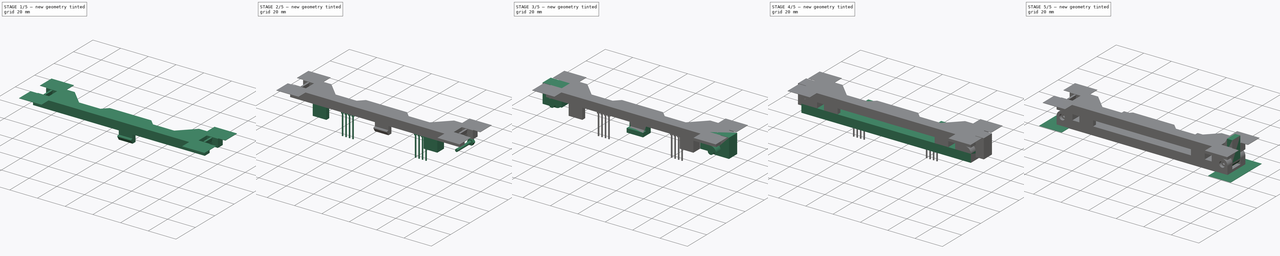
[diagram: build sequence overview — one tinted view per stage of 5, left to right]
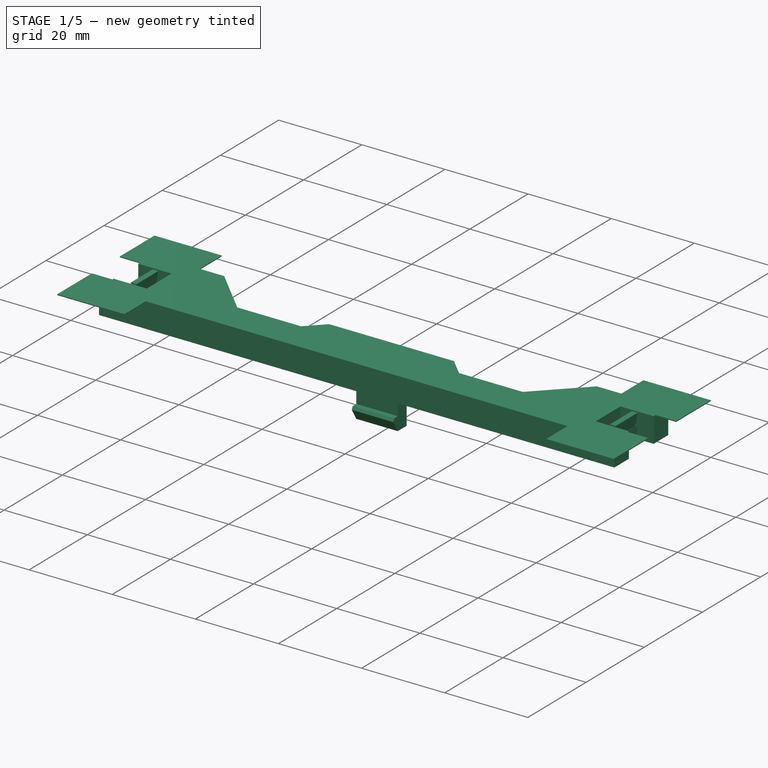
[diagram: stage 1 of 5 — iso view after this stage's code; geometry added in this stage tinted green]
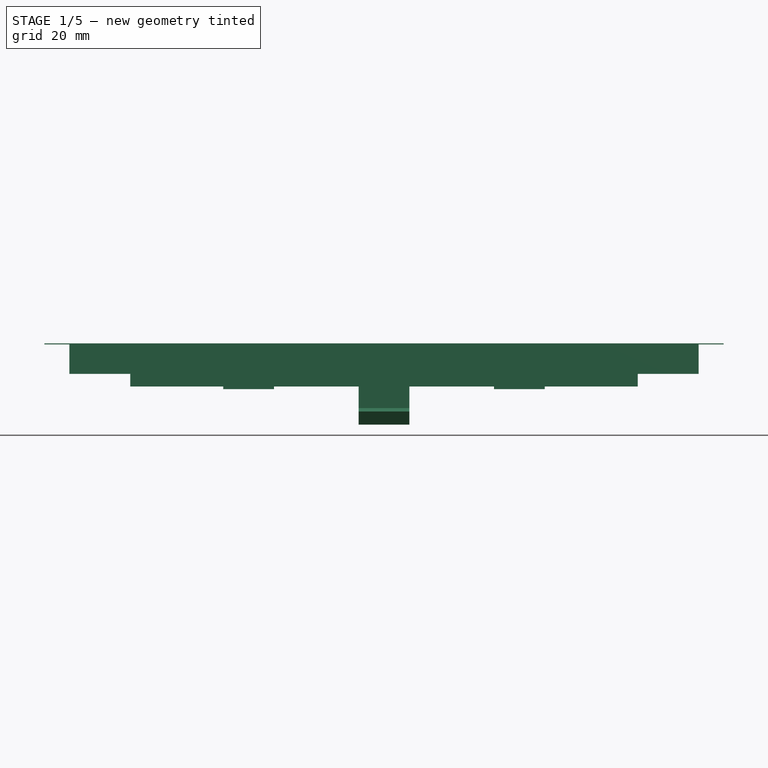
[diagram: stage 1 of 5 — front view after this stage's code; geometry added in this stage tinted green]
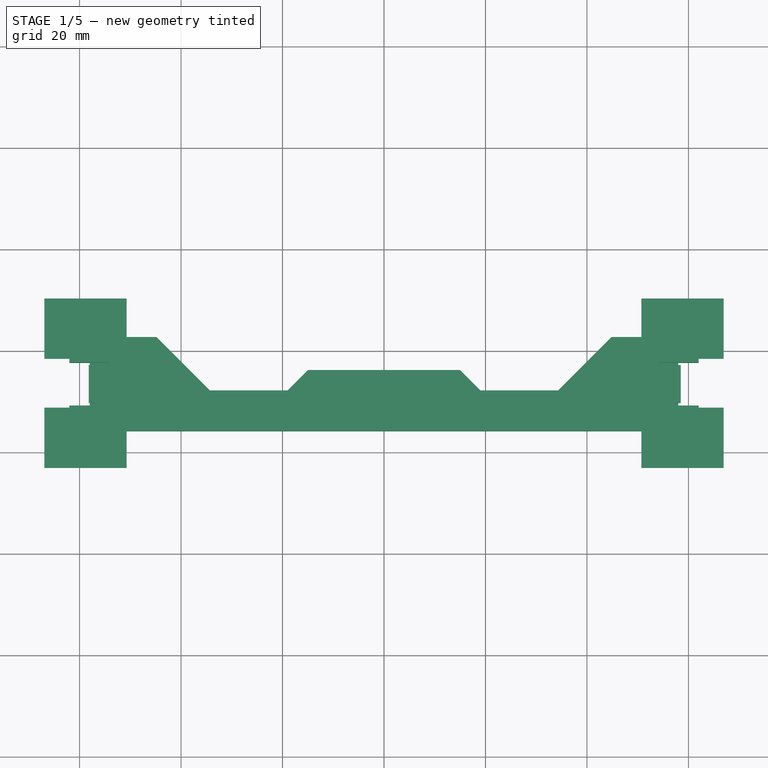
[diagram: stage 1 of 5 — top view after this stage's code; geometry added in this stage tinted green]
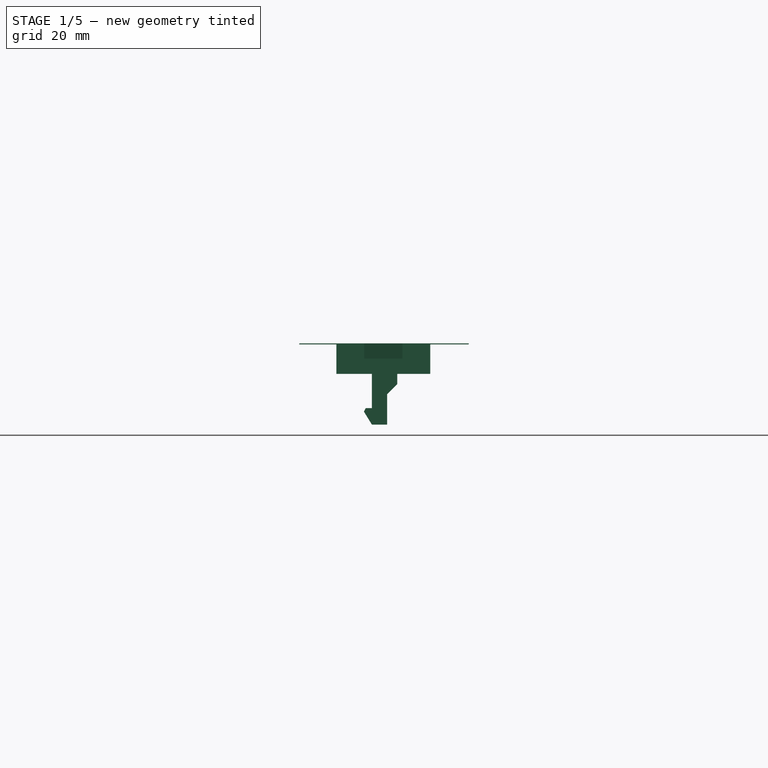
[diagram: stage 1 of 5 — right view after this stage's code; geometry added in this stage tinted green]
FCSTD DOCUMENT  (FreeCAD 0.19R24276 (Git))
Label: ffc_soldering_testing_jig
License: All rights reserved
LicenseURL: http://en.wikipedia.org/wiki/All_rights_reserved
objects: Sketcher::SketchObject×35, PartDesign::Pad×31, PartDesign::Body×16, PartDesign::Boolean×7, PartDesign::Chamfer×4, App::VRMLObject×3, PartDesign::Pocket×2, PartDesign::Draft×2
note: 136 computed .brp shape members not serialized (recipe doc carries the construction recipe); baked Part::Feature solids carry a one-line shape summary decoded from their .brp

FEATURE [Sketcher::SketchObject] Sketch068
  AttachmentOffset = pos=(0,0,4) rot=(0,0,1;0rad)
  FullyConstrained = false
  MapMode = 5
  Placement = pos=(0,0,4) rot=(0,0,1;0rad)
  Support = -> [XY_Plane127]
  sketch-geometry (19):
    g0: LineSegment StartX=-62 StartY=2.5 StartZ=0 EndX=62 EndY=2.5 EndZ=0
    g1: LineSegment StartX=62 StartY=2.5 StartZ=0 EndX=62 EndY=-16 EndZ=0
    g2: LineSegment StartX=62 StartY=-16 StartZ=0 EndX=-62 EndY=-16 EndZ=0
    g3: LineSegment StartX=-62 StartY=-16 StartZ=0 EndX=-62 EndY=2.5 EndZ=0
    g4: LineSegment StartX=-62 StartY=2.5 StartZ=0 EndX=0 EndY=0 EndZ=0
    g5: LineSegment StartX=0 StartY=0 StartZ=0 EndX=62 EndY=2.5 EndZ=0
    g6: LineSegment StartX=-62 StartY=2.5 StartZ=0 EndX=-44.84 EndY=2.5 EndZ=0
    g7: LineSegment StartX=-44.84 StartY=2.5 StartZ=0 EndX=-34.34 EndY=-8 EndZ=0
    g8: LineSegment StartX=-34.34 StartY=-8 StartZ=0 EndX=-19 EndY=-8 EndZ=0
    g9: LineSegment StartX=-19 StartY=-8 StartZ=0 EndX=-15 EndY=-4 EndZ=0
    g10: LineSegment StartX=-15 StartY=-4 StartZ=0 EndX=15 EndY=-4 EndZ=0
    g11: LineSegment StartX=15 StartY=-4 StartZ=0 EndX=19 EndY=-8 EndZ=0
    g12: LineSegment StartX=19 StartY=-8 StartZ=0 EndX=34.34 EndY=-8 EndZ=0
    g13: LineSegment StartX=34.34 StartY=-8 StartZ=0 EndX=44.84 EndY=2.5 EndZ=0
    g14: LineSegment StartX=44.84 StartY=2.5 StartZ=0 EndX=62 EndY=2.5 EndZ=0
    g15: LineSegment StartX=-15 StartY=-4 StartZ=0 EndX=0 EndY=0 EndZ=0
    g16: LineSegment StartX=0 StartY=0 StartZ=0 EndX=15 EndY=-4 EndZ=0
    g17: LineSegment StartX=-34.34 StartY=-8 StartZ=0 EndX=-26.67 EndY=2.5 EndZ=0
    g18: LineSegment StartX=-26.67 StartY=2.5 StartZ=0 EndX=-19 EndY=-8 EndZ=0
  constraints (51):
    c: Coincident(g0,g1)
    c: Coincident(g1,g2)
    c: Coincident(g2,g3)
    c: Coincident(g3,g0)
    c: Horizontal(g0)
    c: Horizontal(g2)
    c: Vertical(g1)
    c: Vertical(g3)
    c: Coincident(g4,g0)
    c: Coincident(g5,g-1)
    c: Coincident(g5,g0)
    c: Equal(g4,g5)
    c: DistanceX(g0,g0) = 124
    c: DistanceY(g-1,g0) = 2.5
    c: DistanceY(g3,g3) = 18.5
    c: Coincident(g3,g6)
    c: PointOnObject(g6,g0)
    c: Coincident(g6,g7)
    c: Horizontal(g8)
    c: Coincident(g8,g9)
    c: Coincident(g9,g10)
    c: Horizontal(g10)
    c: Coincident(g10,g11)
    c: Coincident(g11,g12)
    c: Horizontal(g12)
    c: PointOnObject(g13,g0)
    c: Coincident(g13,g14)
    c: Coincident(g14,g1)
    c: Angle(g6,g7) = 2.35619
    c: Equal(g9,g11)
    c: Equal(g13,g7)
    c: Equal(g8,g12)
    c: Coincident(g9,g15)
    c: Coincident(g15,g-1)
    c: Coincident(g15,g16)
    c: Coincident(g16,g10)
    c: Equal(g15,g16)
    c: DistanceY(g9,g-1) = 4
    c: DistanceX(g10,g10) = 30
    c: DistanceY(g8,g-1) = 8
    c: PointOnObject(g17,g0)
    c: Coincident(g17,g18)
    c: Coincident(g18,g8)
    c: Equal(g18,g17)
    c: DistanceX(g17,g-1) = 26.67
    c: Coincident(g13,g12)
    c: Coincident(g7,g8)
    c: Parallel(g11,g7)
    c: Parallel(g13,g9)
    c: Coincident(g17,g7)
    c: Coincident(g4,g-1)
FEATURE [PartDesign::Pad] Pad043
  AllowMultiFace = false
  Direction = (1,1,1)
  Length = 6
  Length2 = 100
  Profile = -> Sketch068
  Type = 0
FEATURE [Sketcher::SketchObject] Sketch069
  ExternalGeometry = -> [Pad043]
  FullyConstrained = false
  MapMode = 5
  Placement = pos=(0,-8,0) rot=(0,0.707107,0.707107;3.14159rad)
  Support = -> [Pad043]
  sketch-geometry (16):
    g0: LineSegment StartX=-50 StartY=4 StartZ=0 EndX=50 EndY=4 EndZ=0
    g1: LineSegment StartX=50 StartY=4 StartZ=0 EndX=50 EndY=1.5 EndZ=0
    g2: LineSegment StartX=-50 StartY=1.5 StartZ=0 EndX=-50 EndY=4 EndZ=0
    g3: LineSegment StartX=-50 StartY=4 StartZ=0 EndX=0 EndY=0 EndZ=0
    g4: LineSegment StartX=0 StartY=0 StartZ=0 EndX=50 EndY=4 EndZ=0
    g5: LineSegment StartX=-50 StartY=1.5 StartZ=0 EndX=-31.67 EndY=1.5 EndZ=0
    g6: LineSegment StartX=-31.67 StartY=1.5 StartZ=0 EndX=-31.67 EndY=1 EndZ=0
    g7: LineSegment StartX=-31.67 StartY=1 StartZ=0 EndX=-21.67 EndY=1 EndZ=0
    g8: LineSegment StartX=-21.67 StartY=1 StartZ=0 EndX=-21.67 EndY=1.5 EndZ=0
    g9: LineSegment StartX=-21.67 StartY=1.5 StartZ=0 EndX=21.67 EndY=1.5 EndZ=0
    g10: LineSegment StartX=21.67 StartY=1.5 StartZ=0 EndX=21.67 EndY=1 EndZ=0
    g11: LineSegment StartX=21.67 StartY=1 StartZ=0 EndX=31.67 EndY=1 EndZ=0
    g12: LineSegment StartX=31.67 StartY=1 StartZ=0 EndX=31.67 EndY=1.5 EndZ=0
    g13: LineSegment StartX=31.67 StartY=1.5 StartZ=0 EndX=50 EndY=1.5 EndZ=0
    g14: LineSegment StartX=-31.67 StartY=1 StartZ=0 EndX=-26.67 EndY=0 EndZ=0
    g15: LineSegment StartX=-26.67 StartY=0 StartZ=0 EndX=-21.67 EndY=1 EndZ=0
  constraints (45):
    c: Coincident(g0,g1)
    c: Coincident(g2,g0)
    c: Horizontal(g0)
    c: Vertical(g1)
    c: Vertical(g2)
    c: PointOnObject(g0,g-3)
    c: Coincident(g0,g3)
    c: Coincident(g3,g-1)
    c: Coincident(g3,g4)
    c: Coincident(g4,g0)
    c: Equal(g4,g3)
    c: DistanceX(g0,g0) = 100
    c: DistanceY(g-1,g2) = 1.5
    c: Coincident(g2,g5)
    c: Horizontal(g5)
    c: Coincident(g5,g6)
    c: Coincident(g6,g7)
    c: Horizontal(g7)
    c: Coincident(g7,g8)
    c: Vertical(g8)
    c: Coincident(g8,g9)
    c: Horizontal(g9)
    c: Coincident(g9,g10)
    c: Coincident(g10,g11)
    c: Horizontal(g11)
    c: Coincident(g11,g12)
    c: Coincident(g12,g13)
    c: Coincident(g13,g1)
    c: Equal(g1,g2)
    c: Vertical(g6)
    c: Equal(g6,g8)
    c: Equal(g8,g10)
    c: Equal(g10,g12)
    c: Vertical(g12)
    c: Vertical(g10)
    c: DistanceY(g-1,g6) = 1
    c: Equal(g5,g13)
    c: Coincident(g6,g14)
    c: Coincident(g14,g15)
    c: Coincident(g15,g7)
    c: Equal(g15,g14)
    c: PointOnObject(g14,g-1)
    c: DistanceX(g14,g-1) = 26.67
    c: Equal(g11,g7)
    c: DistanceX(g7,g7) = 10
FEATURE [PartDesign::Pad] Pad044
  AllowMultiFace = false
  BaseFeature = -> Pad043
  Direction = (1,1,1)
  Length = 1
  Length2 = 100
  Profile = -> Sketch069
  Refine = true
  Reversed = true
  Type = 0
FEATURE [PartDesign::Chamfer] Chamfer011
  Angle = 45
  Base = -> Pad044 [Edge57,Edge12,Edge16]
  BaseFeature = -> Pad044
  ChamferType = 0
  FlipDirection = false
  Size = 2
  Size2 = 1
  SupportTransform = false
FEATURE [Sketcher::SketchObject] Sketch070
  AttachmentOffset = pos=(0,0,2.5) rot=(0,0,1;0rad)
  FullyConstrained = false
  MapMode = 5
  Placement = pos=(0,-2.5,-6e-16) rot=(1,0,0;1.5708rad)
  Support = -> [XZ_Plane127]
  sketch-geometry (14):
    g0: LineSegment StartX=-66.7045 StartY=17.1098 StartZ=0 EndX=-54 EndY=17.1098 EndZ=0
    g1: LineSegment StartX=-54 StartY=17.1098 StartZ=0 EndX=-54 EndY=7 EndZ=0
    g2: LineSegment StartX=-66.7045 StartY=0 StartZ=0 EndX=-66.7045 EndY=17.1098 EndZ=0
    g3: LineSegment StartX=54 StartY=17.1098 StartZ=0 EndX=66.7045 EndY=17.1098 EndZ=0
    g4: LineSegment StartX=66.7045 StartY=17.1098 StartZ=0 EndX=66.7045 EndY=0 EndZ=0
    g5: LineSegment StartX=54 StartY=7 StartZ=0 EndX=54 EndY=17.1098 EndZ=0
    g6: LineSegment StartX=-54 StartY=17.1098 StartZ=0 EndX=0 EndY=17.1098 EndZ=0
    g7: LineSegment StartX=54 StartY=17.1098 StartZ=0 EndX=0 EndY=17.1098 EndZ=0
    g8: LineSegment StartX=-54 StartY=7 StartZ=0 EndX=-58 EndY=7 EndZ=0
    g9: LineSegment StartX=-58 StartY=7 StartZ=0 EndX=-58 EndY=0 EndZ=0
    g10: LineSegment StartX=-58 StartY=0 StartZ=0 EndX=-66.7045 EndY=0 EndZ=0
    g11: LineSegment StartX=54 StartY=7 StartZ=0 EndX=58 EndY=7 EndZ=0
    g12: LineSegment StartX=58 StartY=7 StartZ=0 EndX=58 EndY=0 EndZ=0
    g13: LineSegment StartX=58 StartY=-2e-16 StartZ=0 EndX=66.7045 EndY=-2e-16 EndZ=0
  constraints (39):
    c: Coincident(g0,g1)
    c: Coincident(g2,g0)
    c: Horizontal(g0)
    c: Vertical(g1)
    c: Vertical(g2)
    c: Coincident(g3,g4)
    c: Coincident(g5,g3)
    c: Horizontal(g3)
    c: Vertical(g4)
    c: Vertical(g5)
    c: Coincident(g6,g0)
    c: Horizontal(g6)
    c: Coincident(g7,g3)
    c: Coincident(g7,g6)
    c: PointOnObject(g6,g-2)
    c: Horizontal(g7)
    c: Equal(g7,g6)
    c: Coincident(g1,g8)
    c: Horizontal(g8)
    c: Coincident(g8,g9)
    c: Vertical(g9)
    c: Coincident(g9,g10)
    c: Coincident(g10,g2)
    c: Coincident(g5,g11)
    c: Horizontal(g11)
    c: Coincident(g11,g12)
    c: Coincident(g12,g13)
    c: Coincident(g13,g4)
    c: Horizontal(g13)
    c: Vertical(g12)
    c: Horizontal(g10)
    c: Equal(g9,g12)
    c: Equal(g11,g8)
    c: Equal(g1,g5)
    c: Equal(g10,g13)
    c: PointOnObject(g12,g-1)
    c: DistanceX(g8,g6) = 58
    c: DistanceX(g1,g6) = 54
    c: DistanceY(g-1,g1) = 7
FEATURE [PartDesign::Pocket] Pocket015
  AllowMultiFace = false
  BaseFeature = -> Chamfer011
  Length = 8.5
  Length2 = 100
  Profile = -> Sketch070
  Reversed = true
  Type = 0
FEATURE [Sketcher::SketchObject] Sketch071
  ExternalGeometry = -> [Pocket015]
  FullyConstrained = false
  MapMode = 5
  Placement = pos=(0,0,0) rot=(0.57735,0.57735,0.57735;2.0944rad)
  Support = -> [YZ_Plane127]
  sketch-geometry (8):
    g0: LineSegment StartX=-4 StartY=4 StartZ=0 EndX=-4 EndY=2 EndZ=0
    g1: LineSegment StartX=-4 StartY=2 StartZ=0 EndX=-6 EndY=0 EndZ=0
    g2: LineSegment StartX=-6 StartY=0 StartZ=0 EndX=-6 EndY=-6 EndZ=0
    g3: LineSegment StartX=-11 StartY=-2.75 StartZ=0 EndX=-9 EndY=-2.75 EndZ=0
    g4: LineSegment StartX=-9 StartY=-2.75 StartZ=0 EndX=-9 EndY=4 EndZ=0
    g5: LineSegment StartX=-9 StartY=4 StartZ=0 EndX=-4 EndY=4 EndZ=0
    g6: LineSegment StartX=-11 StartY=-2.75 StartZ=0 EndX=-9 EndY=-6 EndZ=0
    g7: LineSegment StartX=-9 StartY=-6 StartZ=0 EndX=-6 EndY=-6 EndZ=0
  constraints (23):
    c: Coincident(g0,g-3)
    c: Vertical(g0)
    c: Coincident(g0,g1)
    c: Coincident(g1,g2)
    c: Vertical(g2)
    c: Horizontal(g3)
    c: Coincident(g3,g4)
    c: Vertical(g4)
    c: Coincident(g4,g5)
    c: Coincident(g5,g0)
    c: Horizontal(g5)
    c: Angle(g0,g1) = 2.35619
    c: DistanceX(g3,g3) = 2
    c: DistanceX(g1,g-1) = 6
    c: PointOnObject(g1,g-1)
    c: DistanceX(g5,g5) = 5
    c: DistanceY(g4,g4) = 6.75
    c: DistanceY(g2,g-1) = 6
    c: Coincident(g7,g6)
    c: Coincident(g7,g2)
    c: DistanceX(g7,g7) = 3
    c: Coincident(g6,g3)
    c: Horizontal(g7)
FEATURE [PartDesign::Pad] Pad045
  AllowMultiFace = false
  BaseFeature = -> Pocket015
  Direction = (1,1,1)
  Length = 10
  Length2 = 100
  Midplane = true
  Profile = -> Sketch071
  Refine = true
  Type = 0
FEATURE [Sketcher::SketchObject] Sketch072
  FullyConstrained = false
  MapMode = 5
  Placement = pos=(0,0,0) rot=(0.57735,0.57735,0.57735;2.0944rad)
  Support = -> [YZ_Plane111]
  sketch-geometry (4):
    g0: LineSegment StartX=-40.4319 StartY=42.3106 StartZ=0 EndX=24.5736 EndY=42.3106 EndZ=0
    g1: LineSegment StartX=24.5736 StartY=42.3106 StartZ=0 EndX=24.5736 EndY=-25.929 EndZ=0
    g2: LineSegment StartX=24.5736 StartY=-25.929 StartZ=0 EndX=-40.4319 EndY=-25.929 EndZ=0
    g3: LineSegment StartX=-40.4319 StartY=-25.929 StartZ=0 EndX=-40.4319 EndY=42.3106 EndZ=0
  constraints (8):
    c: Coincident(g0,g1)
    c: Coincident(g1,g2)
    c: Coincident(g2,g3)
    c: Coincident(g3,g0)
    c: Horizontal(g0)
    c: Horizontal(g2)
    c: Vertical(g1)
    c: Vertical(g3)
FEATURE [PartDesign::Chamfer] Chamfer012
  Angle = 45
  Base = -> Pad045 [Edge134]
  BaseFeature = -> Pad045
  ChamferType = 0
  FlipDirection = false
  Size = 0.8
  Size2 = 1
  SupportTransform = false
FEATURE [PartDesign::Body] Body003  label="Lower_new"
  Group = -> [Sketch043,Pad018,Boolean,Boolean001,Boolean003,Boolean004,Boolean005,Sketch072,Boolean006,Boolean007,Sketch083,Pad052]
  Origin = -> Origin111
  Tip = -> Pad052
FEATURE [Sketcher::SketchObject] Sketch084
  FullyConstrained = false
  MapMode = 5
  Placement = pos=(0,1.5e-15,7) rot=(0,0,1;0rad)
  Support = -> [Chamfer012]
  sketch-geometry (12):
    g0: LineSegment StartX=-57.35 StartY=-3 StartZ=0 EndX=-57.65 EndY=-3 EndZ=0
    g1: LineSegment StartX=-57.65 StartY=-3 StartZ=0 EndX=-57.65 EndY=-10.5 EndZ=0
    g2: LineSegment StartX=-57.65 StartY=-10.5 StartZ=0 EndX=-57.35 EndY=-10.5 EndZ=0
    g3: LineSegment StartX=-57.35 StartY=-10.5 StartZ=0 EndX=-57.35 EndY=-3 EndZ=0
    g4: LineSegment StartX=57.65 StartY=-3 StartZ=0 EndX=57.95 EndY=-3 EndZ=0
    g5: LineSegment StartX=57.95 StartY=-3 StartZ=0 EndX=57.95 EndY=-10.5 EndZ=0
    g6: LineSegment StartX=57.95 StartY=-10.5 StartZ=0 EndX=57.65 EndY=-10.5 EndZ=0
    g7: LineSegment StartX=57.65 StartY=-10.5 StartZ=0 EndX=57.65 EndY=-3 EndZ=0
    g8: LineSegment StartX=57.65 StartY=-3 StartZ=0 EndX=0 EndY=-6.75 EndZ=0
    g9: LineSegment StartX=0 StartY=-6.75 StartZ=0 EndX=57.65 EndY=-10.5 EndZ=0
    g10: LineSegment StartX=-57.65 StartY=-3 StartZ=0 EndX=0 EndY=-6.75 EndZ=0
    g11: LineSegment StartX=0 StartY=-6.75 StartZ=0 EndX=-57.65 EndY=-10.5 EndZ=0
  constraints (33):
    c: Coincident(g0,g1)
    c: Coincident(g1,g2)
    c: Coincident(g2,g3)
    c: Coincident(g3,g0)
    c: Horizontal(g0)
    c: Horizontal(g2)
    c: Vertical(g1)
    c: Vertical(g3)
    c: Coincident(g4,g5)
    c: Coincident(g5,g6)
    c: Coincident(g6,g7)
    c: Coincident(g7,g4)
    c: Horizontal(g4)
    c: Horizontal(g6)
    c: Vertical(g5)
    c: Vertical(g7)
    c: Coincident(g4,g8)
    c: PointOnObject(g8,g-2)
    c: Coincident(g8,g9)
    c: Coincident(g9,g6)
    c: Coincident(g0,g10)
    c: Coincident(g10,g8)
    c: Coincident(g10,g11)
    c: Coincident(g11,g1)
    c: Equal(g11,g10)
    c: Equal(g10,g8)
    c: Equal(g8,g9)
    c: Equal(g4,g0)
    c: Equal(g3,g7)
    c: DistanceX(g4,g4) = 0.3
    c: DistanceY(g5,g5) = 7.5
    c: DistanceX(g0,g4) = 115
    c: DistanceY(g8,g-1) = 6.75
FEATURE [PartDesign::Pad] Pad053
  AllowMultiFace = false
  BaseFeature = -> Chamfer012
  Direction = (1,1,1)
  Length = 3
  Length2 = 100
  Profile = -> Sketch084
  Type = 0
FEATURE [PartDesign::Draft] Draft004
  Angle = 10
  Base = -> Pad053 [Face58,Face60,Face54,Face56]
  BaseFeature = -> Pad053
  NeutralPlane = -> Pad053 [Face52]
  Reversed = true
  SupportTransform = false
FEATURE [Sketcher::SketchObject] Sketch085
  FullyConstrained = false
  MapMode = 5
  Placement = pos=(0,0,10) rot=(0,0,1;0rad)
  Support = -> [Draft004]
  sketch-geometry (24):
    g0: LineSegment StartX=-66.9264 StartY=10.09 StartZ=0 EndX=-50.7211 EndY=10.09 EndZ=0
    g1: LineSegment StartX=-50.7211 StartY=10.09 StartZ=0 EndX=-50.7211 EndY=-1.8093 EndZ=0
    g2: LineSegment StartX=-50.7211 StartY=-1.8093 StartZ=0 EndX=-66.9264 EndY=-1.8093 EndZ=0
    g3: LineSegment StartX=-66.9264 StartY=-1.8093 StartZ=0 EndX=-66.9264 EndY=10.09 EndZ=0
    g4: LineSegment StartX=50.7211 StartY=10.09 StartZ=0 EndX=66.9264 EndY=10.09 EndZ=0
    g5: LineSegment StartX=66.9264 StartY=10.09 StartZ=0 EndX=66.9264 EndY=-1.8093 EndZ=0
    g6: LineSegment StartX=66.9264 StartY=-1.8093 StartZ=0 EndX=50.7211 EndY=-1.8093 EndZ=0
    g7: LineSegment StartX=50.7211 StartY=-1.8093 StartZ=0 EndX=50.7211 EndY=10.09 EndZ=0
    g8: LineSegment StartX=-50.7211 StartY=10.09 StartZ=0 EndX=0 EndY=0 EndZ=0
    g9: LineSegment StartX=0 StartY=0 StartZ=0 EndX=50.7211 EndY=10.09 EndZ=0
    g10: LineSegment StartX=-50.7211 StartY=-1.8093 StartZ=0 EndX=0 EndY=0 EndZ=0
    g11: LineSegment StartX=0 StartY=0 StartZ=0 EndX=50.7211 EndY=-1.8093 EndZ=0
    g12: LineSegment StartX=-66.9264 StartY=-11.4213 StartZ=0 EndX=-50.7211 EndY=-11.4213 EndZ=0
    g13: LineSegment StartX=-50.7211 StartY=-11.4213 StartZ=0 EndX=-50.7211 EndY=-23.3206 EndZ=0
    g14: LineSegment StartX=-50.7211 StartY=-23.3206 StartZ=0 EndX=-66.9264 EndY=-23.3206 EndZ=0
    g15: LineSegment StartX=-66.9264 StartY=-23.3206 StartZ=0 EndX=-66.9264 EndY=-11.4213 EndZ=0
    g16: LineSegment StartX=50.7211 StartY=-11.4213 StartZ=0 EndX=66.9264 EndY=-11.4213 EndZ=0
    g17: LineSegment StartX=66.9264 StartY=-11.4213 StartZ=0 EndX=66.9264 EndY=-23.3206 EndZ=0
    g18: LineSegment StartX=66.9264 StartY=-23.3206 StartZ=0 EndX=50.7211 EndY=-23.3206 EndZ=0
    g19: LineSegment StartX=50.7211 StartY=-23.3206 StartZ=0 EndX=50.7211 EndY=-11.4213 EndZ=0
    g20: LineSegment StartX=50.7211 StartY=-1.8093 StartZ=0 EndX=50.7211 EndY=-11.4213 EndZ=0
    g21: LineSegment StartX=66.9264 StartY=-1.8093 StartZ=0 EndX=66.9264 EndY=-11.4213 EndZ=0
    g22: LineSegment StartX=-50.7211 StartY=-11.4213 StartZ=0 EndX=-50.7211 EndY=-1.8093 EndZ=0
    g23: LineSegment StartX=-66.9264 StartY=-11.4213 StartZ=0 EndX=-66.9264 EndY=-1.8093 EndZ=0
  constraints (59):
    c: Coincident(g0,g1)
    c: Coincident(g1,g2)
    c: Coincident(g2,g3)
    c: Coincident(g3,g0)
    c: Horizontal(g0)
    c: Horizontal(g2)
    c: Vertical(g1)
    c: Vertical(g3)
    c: Coincident(g4,g5)
    c: Coincident(g5,g6)
    c: Coincident(g6,g7)
    c: Coincident(g7,g4)
    c: Horizontal(g4)
    c: Horizontal(g6)
    c: Vertical(g5)
    c: Vertical(g7)
    c: Coincident(g0,g8)
    c: Coincident(g8,g-1)
    c: Coincident(g8,g9)
    c: Coincident(g9,g4)
    c: Equal(g9,g8)
    c: Equal(g0,g4)
    c: Equal(g7,g1)
    c: Coincident(g1,g10)
    c: Coincident(g10,g-1)
    c: Coincident(g10,g11)
    c: Coincident(g11,g6)
    c: Equal(g11,g10)
    c: Coincident(g12,g13)
    c: Coincident(g13,g14)
    c: Coincident(g14,g15)
    c: Coincident(g15,g12)
    c: Horizontal(g12)
    c: Horizontal(g14)
    c: Vertical(g13)
    c: Vertical(g15)
    c: Coincident(g16,g17)
    c: Coincident(g17,g18)
    c: Coincident(g18,g19)
    c: Coincident(g19,g16)
    c: Horizontal(g16)
    c: Horizontal(g18)
    c: Vertical(g17)
    c: Vertical(g19)
    c: Coincident(g6,g20)
    c: Coincident(g20,g16)
    c: Vertical(g20)
    c: Coincident(g5,g21)
    c: Coincident(g21,g16)
    c: Coincident(g12,g22)
    c: Coincident(g22,g1)
    c: Coincident(g23,g12)
    c: Coincident(g23,g2)
    c: Vertical(g23)
    c: Vertical(g22)
    c: Vertical(g21)
    c: Equal(g20,g22)
    c: Equal(g1,g13)
    c: Equal(g13,g19)
FEATURE [PartDesign::Pad] Pad054
  AllowMultiFace = false
  BaseFeature = -> Draft004
  Direction = (1,1,1)
  Length = 0.2
  Length2 = 100
  Profile = -> Sketch085
  Refine = true
  Reversed = true
  Type = 0
FEATURE [PartDesign::Body] Body019  label="Upper_new"
  Group = -> [Sketch068,Pad043,Sketch069,Pad044,Chamfer011,Sketch070,Pocket015,Sketch071,Pad045,Chamfer012,Sketch079,Sketch084,Pad053,Draft004,Sketch085,Pad054]
  Origin = -> Origin127
  Tip = -> Pad054
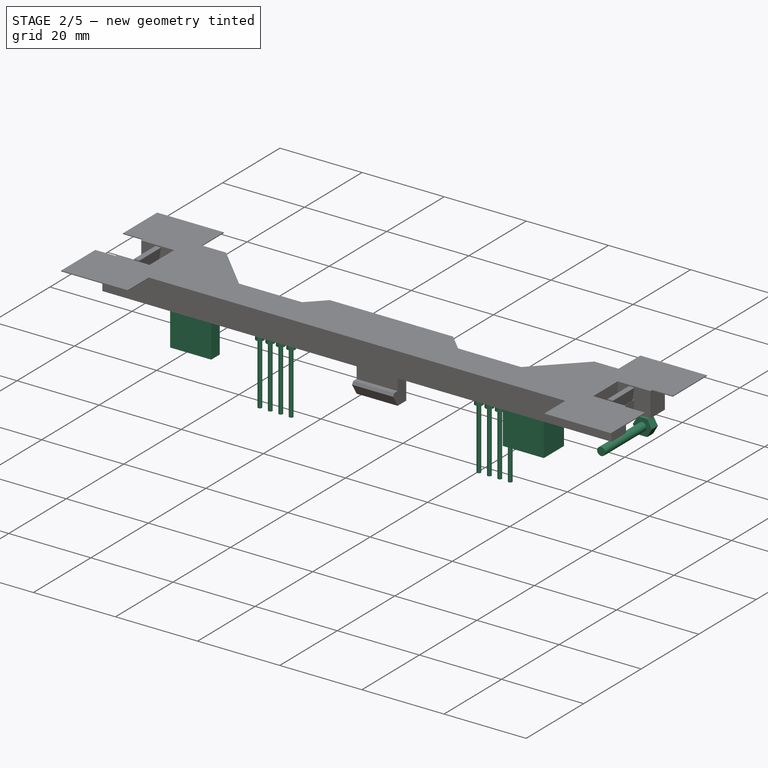
[diagram: stage 2 of 5 — iso view after this stage's code; geometry added in this stage tinted green]
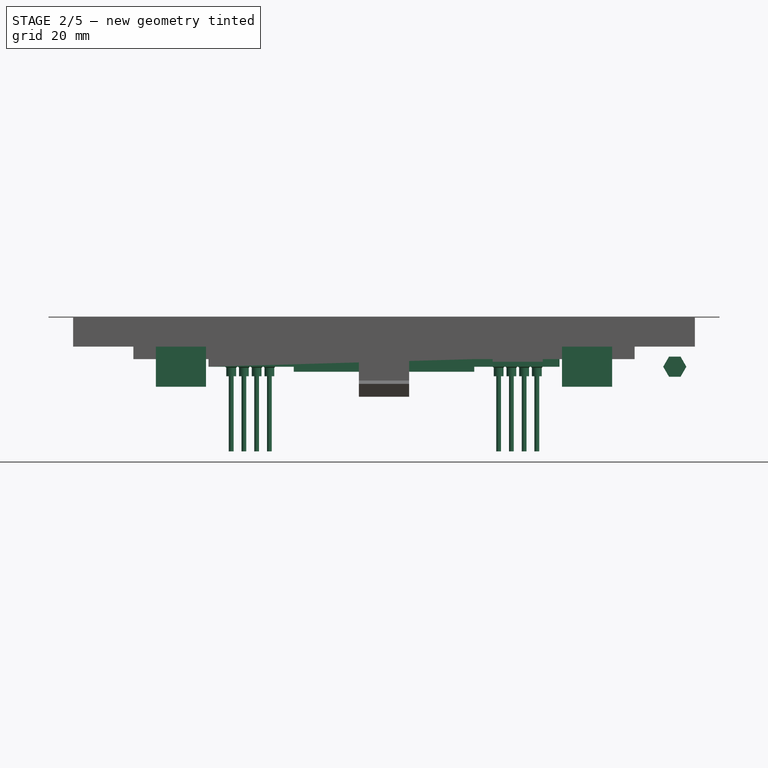
[diagram: stage 2 of 5 — front view after this stage's code; geometry added in this stage tinted green]
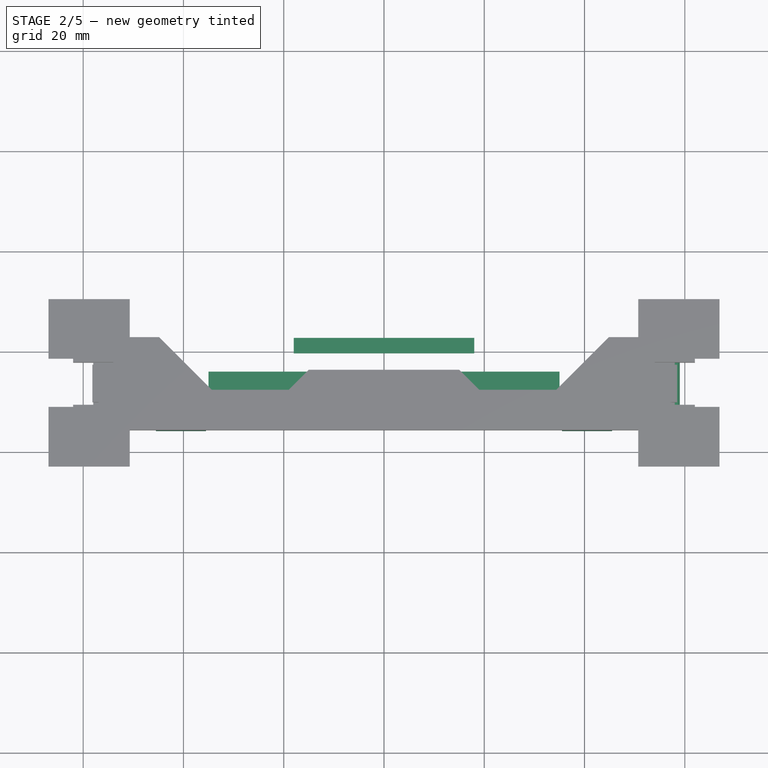
[diagram: stage 2 of 5 — top view after this stage's code; geometry added in this stage tinted green]
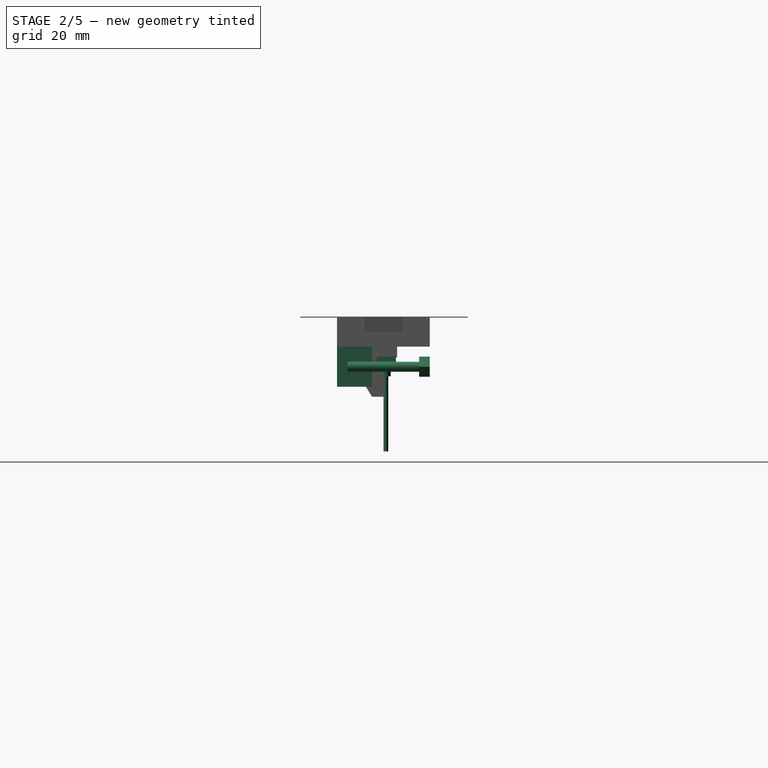
[diagram: stage 2 of 5 — right view after this stage's code; geometry added in this stage tinted green]
FEATURE [PartDesign::Body] Body017  label="feature_sidelatch_sub_A"
  Group = -> [Sketch063,Pad036,Sketch064,Pad037,Sketch065,Pad004,Sketch005,Pad038]
  Origin = -> Origin125
  Tip = -> Pad038
FEATURE [Sketcher::SketchObject] Sketch067
  AttachmentOffset = pos=(0,0,-2.5) rot=(0,0,1;0rad)
  FullyConstrained = false
  MapMode = 5
  Placement = pos=(0,2.5,6e-16) rot=(1,0,0;1.5708rad)
  Support = -> [XZ_Plane126]
  sketch-geometry (7):
    g0: LineSegment StartX=59.1547 StartY=-2 StartZ=0 EndX=60.3094 EndY=-2e-16 EndZ=0
    g1: LineSegment StartX=60.3094 StartY=-2e-16 StartZ=0 EndX=59.1547 EndY=2 EndZ=0
    g2: LineSegment StartX=59.1547 StartY=2 StartZ=0 EndX=56.8453 EndY=2 EndZ=0
    g3: LineSegment StartX=56.8453 StartY=2 StartZ=0 EndX=55.6906 EndY=-2e-16 EndZ=0
    g4: LineSegment StartX=55.6906 StartY=-1e-16 StartZ=0 EndX=56.8453 EndY=-2 EndZ=0
    g5: LineSegment StartX=56.8453 StartY=-2 StartZ=0 EndX=59.1547 EndY=-2 EndZ=0
    g6: Circle CenterX=58 CenterY=0 CenterZ=0 NormalX=0 NormalY=0 NormalZ=1 AngleXU=0 Radius=2.3094
  constraints (17):
    c: Coincident(g0,g1)
    c: Coincident(g1,g2)
    c: Coincident(g2,g3)
    c: Coincident(g3,g4)
    c: Coincident(g4,g5)
    c: Coincident(g5,g0)
    c: Equal(g0, g1-g5) x5
    c: PointOnObject(g0,g6)
    c: PointOnObject(g1,g6)
    c: PointOnObject(g2,g6)
    c: PointOnObject(g3,g6)
    c: PointOnObject(g4,g6)
    c: PointOnObject(g5,g6)
    c: PointOnObject(g6,g-1)
    c: Horizontal(g2)
    c: DistanceY(g4,g2) = 4
    c: DistanceX(g-1,g6) = 58
FEATURE [PartDesign::Pad] Pad039
  AllowMultiFace = false
  Direction = (1,1,1)
  Length = 2.1
  Length2 = 100
  Placement = pos=(0,0,0) rot=(1,0,0;1.5708rad)
  Profile = -> Sketch067
  Type = 0
FEATURE [Sketcher::SketchObject] Sketch008
  FullyConstrained = true
  MapMode = 5
  Placement = pos=(0,0.4,1e-16) rot=(1,0,0;1.5708rad)
  Support = -> [Pad039]
  sketch-geometry (1):
    g0: Circle CenterX=58 CenterY=0 CenterZ=0 NormalX=0 NormalY=0 NormalZ=1 AngleXU=0 Radius=1
  constraints (3):
    c: PointOnObject(g0,g-1)
    c: Diameter(g0) = 2
    c: DistanceX(g-1,g0) = 58
FEATURE [PartDesign::Pad] Pad041
  AllowMultiFace = false
  BaseFeature = -> Pad039
  Direction = (1,1,1)
  Length = 14.3
  Length2 = 100
  Placement = pos=(0,0,0) rot=(1,0,0;1.5708rad)
  Profile = -> Sketch008
  Type = 0
FEATURE [Sketcher::SketchObject] Sketch073
  FullyConstrained = false
  MapMode = 5
  Support = -> [XY_Plane128]
  sketch-geometry (7):
    g0: LineSegment StartX=-35 StartY=-4.25 StartZ=0 EndX=35 EndY=-4.25 EndZ=0
    g1: LineSegment StartX=35 StartY=-4.25 StartZ=0 EndX=35 EndY=-8.25 EndZ=0
    g2: LineSegment StartX=35 StartY=-8.25 StartZ=0 EndX=-35 EndY=-8.25 EndZ=0
    g3: LineSegment StartX=-35 StartY=-8.25 StartZ=0 EndX=-35 EndY=-4.25 EndZ=0
    g4: LineSegment StartX=-35 StartY=-4.25 StartZ=0 EndX=0 EndY=-6.25 EndZ=0
    g5: LineSegment StartX=0 StartY=-6.25 StartZ=0 EndX=35 EndY=-4.25 EndZ=0
    g6: LineSegment StartX=0 StartY=-6.25 StartZ=0 EndX=-35 EndY=-8.25 EndZ=0
  constraints (19):
    c: Coincident(g0,g1)
    c: Coincident(g1,g2)
    c: Coincident(g2,g3)
    c: Coincident(g3,g0)
    c: Horizontal(g0)
    c: Horizontal(g2)
    c: Vertical(g1)
    c: Vertical(g3)
    c: Coincident(g0,g4)
    c: PointOnObject(g4,g-2)
    c: Coincident(g4,g5)
    c: Coincident(g5,g0)
    c: Coincident(g4,g6)
    c: Coincident(g6,g2)
    c: Equal(g6,g4)
    c: Equal(g4,g5)
    c: DistanceY(g4,g-1) = 6.25
    c: DistanceX(g0,g0) = 70
    c: DistanceY(g3,g3) = 4
FEATURE [PartDesign::Pad] Pad046
  AllowMultiFace = false
  Direction = (1,1,1)
  Length = 2
  Length2 = 100
  Profile = -> Sketch073
  Type = 0
FEATURE [Sketcher::SketchObject] Sketch074
  FullyConstrained = true
  MapMode = 5
  Placement = pos=(0,0,0) rot=(1,0,0;3.14159rad)
  Support = -> [Pad046]
  expr: Constraints[37] = 1.8 + 0.15
  sketch-geometry (18):
    g0: Circle CenterX=-30.48 CenterY=6.25 CenterZ=0 NormalX=0 NormalY=0 NormalZ=1 AngleXU=0 Radius=0.975
    g1: LineSegment StartX=-30.48 StartY=6.25 StartZ=0 EndX=-27.94 EndY=6.25 EndZ=0
    g2: LineSegment StartX=-27.94 StartY=6.25 StartZ=0 EndX=-25.4 EndY=6.25 EndZ=0
    g3: LineSegment StartX=-25.4 StartY=6.25 StartZ=0 EndX=-22.86 EndY=6.25 EndZ=0
    g4: LineSegment StartX=22.86 StartY=6.25 StartZ=0 EndX=25.4 EndY=6.25 EndZ=0
    g5: LineSegment StartX=25.4 StartY=6.25 StartZ=0 EndX=27.94 EndY=6.25 EndZ=0
    g6: LineSegment StartX=27.94 StartY=6.25 StartZ=0 EndX=30.48 EndY=6.25 EndZ=0
    g7: LineSegment StartX=-27.94 StartY=6.25 StartZ=0 EndX=-26.67 EndY=0 EndZ=0
    g8: LineSegment StartX=-26.67 StartY=0 StartZ=0 EndX=-25.4 EndY=6.25 EndZ=0
    g9: LineSegment StartX=25.4 StartY=6.25 StartZ=0 EndX=26.67 EndY=0 EndZ=0
    g10: LineSegment StartX=26.67 StartY=0 StartZ=0 EndX=27.94 EndY=6.25 EndZ=0
    g11: Circle CenterX=-22.86 CenterY=6.25 CenterZ=0 NormalX=0 NormalY=0 NormalZ=1 AngleXU=0 Radius=0.975
    g12: Circle CenterX=-25.4 CenterY=6.25 CenterZ=0 NormalX=0 NormalY=0 NormalZ=1 AngleXU=0 Radius=0.975
    g13: Circle CenterX=-27.94 CenterY=6.25 CenterZ=0 NormalX=0 NormalY=0 NormalZ=1 AngleXU=0 Radius=0.975
    g14: Circle CenterX=22.86 CenterY=6.25 CenterZ=0 NormalX=0 NormalY=0 NormalZ=1 AngleXU=0 Radius=0.975
    g15: Circle CenterX=25.4 CenterY=6.25 CenterZ=0 NormalX=0 NormalY=0 NormalZ=1 AngleXU=0 Radius=0.975
    g16: Circle CenterX=27.94 CenterY=6.25 CenterZ=0 NormalX=0 NormalY=0 NormalZ=1 AngleXU=0 Radius=0.975
    g17: Circle CenterX=30.48 CenterY=6.25 CenterZ=0 NormalX=0 NormalY=0 NormalZ=1 AngleXU=0 Radius=0.975
  constraints (40):
    c: Coincident(g1,g0)
    c: Horizontal(g1)
    c: Coincident(g1,g2)
    c: Coincident(g2,g3)
    c: Horizontal(g3)
    c: Coincident(g4,g5)
    c: Horizontal(g5)
    c: Coincident(g5,g6)
    c: Horizontal(g6)
    c: Coincident(g1,g7)
    c: PointOnObject(g7,g-1)
    c: Coincident(g7,g8)
    c: Coincident(g8,g2)
    c: Coincident(g4,g9)
    c: PointOnObject(g9,g-1)
    c: Coincident(g9,g10)
    c: Coincident(g10,g5)
    c: Equal(g9,g10)
    c: Equal(g10,g8)
    c: Equal(g8,g7)
    c: Horizontal(g4)
    c: Horizontal(g2)
    c: Equal(g3,g2)
    c: Equal(g2,g1)
    c: Equal(g1,g4)
    c: Equal(g4,g5)
    c: Equal(g5,g6)
    c: DistanceX(g6,g6) = 2.54
    c: DistanceX(g-1,g9) = 26.67
    c: DistanceY(g-1,g6) = 6.25
    c: Coincident(g11,g3)
    c: Coincident(g12,g2)
    c: Coincident(g13,g1)
    c: Coincident(g14,g4)
    c: Coincident(g15,g4)
    c: Coincident(g16,g5)
    c: Coincident(g17,g6)
    c: Diameter(g0) = 1.95
    c: Equal(g0, g11-g17) x7
    c: DistanceX(g7,g-1) = 26.67
FEATURE [PartDesign::Pad] Pad047
  AllowMultiFace = false
  BaseFeature = -> Pad046
  Direction = (1,1,1)
  Length = 1.9
  Length2 = 100
  Profile = -> Sketch074
  Type = 0
FEATURE [Sketcher::SketchObject] Sketch075
  ExternalGeometry = -> [Pad047]
  FullyConstrained = true
  MapMode = 5
  Placement = pos=(0,0,-1.9) rot=(1,0,0;3.14159rad)
  Support = -> [Pad047]
  sketch-geometry (8):
    g0: Circle CenterX=-30.48 CenterY=6.25 CenterZ=0 NormalX=0 NormalY=0 NormalZ=1 AngleXU=0 Radius=0.475
    g1: Circle CenterX=30.48 CenterY=6.25 CenterZ=0 NormalX=0 NormalY=0 NormalZ=1 AngleXU=0 Radius=0.475
    g2: Circle CenterX=27.94 CenterY=6.25 CenterZ=0 NormalX=0 NormalY=0 NormalZ=1 AngleXU=0 Radius=0.475
    g3: Circle CenterX=25.4 CenterY=6.25 CenterZ=0 NormalX=0 NormalY=0 NormalZ=1 AngleXU=0 Radius=0.475
    g4: Circle CenterX=-27.94 CenterY=6.25 CenterZ=0 NormalX=0 NormalY=0 NormalZ=1 AngleXU=0 Radius=0.475
    g5: Circle CenterX=-22.86 CenterY=6.25 CenterZ=0 NormalX=0 NormalY=0 NormalZ=1 AngleXU=0 Radius=0.475
    g6: Circle CenterX=-25.4 CenterY=6.25 CenterZ=0 NormalX=0 NormalY=0 NormalZ=1 AngleXU=0 Radius=0.475
    g7: Circle CenterX=22.86 CenterY=6.25 CenterZ=0 NormalX=0 NormalY=0 NormalZ=1 AngleXU=0 Radius=0.475
  constraints (16):
    c: Coincident(g0,g-3)
    c: Coincident(g1,g-4)
    c: Coincident(g2,g-5)
    c: Coincident(g3,g-6)
    c: Coincident(g4,g-7)
    c: Coincident(g5,g-8)
    c: Coincident(g6,g-9)
    c: Coincident(g7,g-10)
    c: Equal(g7,g6)
    c: Equal(g6,g5)
    c: Equal(g5,g4)
    c: Equal(g4,g0)
    c: Equal(g0,g1)
    c: Equal(g1,g3)
    c: Equal(g3,g2)
    c: Diameter(g0) = 0.95
FEATURE [PartDesign::Pad] Pad048
  AllowMultiFace = false
  BaseFeature = -> Pad047
  Direction = (1,1,1)
  Length = 15
  Length2 = 100
  Profile = -> Sketch075
  Type = 0
FEATURE [PartDesign::Chamfer] Chamfer013
  Angle = 45
  Base = -> Pad048 [Edge14,Edge13,Edge12,Edge19,Edge18,Edge16,Edge17,Edge15]
  BaseFeature = -> Pad048
  ChamferType = 0
  FlipDirection = false
  Size = 0.2
  Size2 = 1
  SupportTransform = false
FEATURE [Sketcher::SketchObject] Sketch079
  FullyConstrained = false
  MapMode = 5
  Placement = pos=(0,0,0) rot=(0.57735,0.57735,0.57735;2.0944rad)
  Support = -> [YZ_Plane127]
  sketch-geometry (4):
    g0: LineSegment StartX=-32.2367 StartY=24.6863 StartZ=0 EndX=23.594 EndY=24.6863 EndZ=0
    g1: LineSegment StartX=23.594 StartY=24.6863 StartZ=0 EndX=23.594 EndY=-16.1542 EndZ=0
    g2: LineSegment StartX=23.594 StartY=-16.1542 StartZ=0 EndX=-32.2367 EndY=-16.1542 EndZ=0
    g3: LineSegment StartX=-32.2367 StartY=-16.1542 StartZ=0 EndX=-32.2367 EndY=24.6863 EndZ=0
  constraints (8):
    c: Coincident(g0,g1)
    c: Coincident(g1,g2)
    c: Coincident(g2,g3)
    c: Coincident(g3,g0)
    c: Horizontal(g0)
    c: Horizontal(g2)
    c: Vertical(g1)
    c: Vertical(g3)
FEATURE [Sketcher::SketchObject] Sketch080
  FullyConstrained = false
  MapMode = 5
  Support = -> [XY_Plane129]
  sketch-geometry (7):
    g0: LineSegment StartX=-18 StartY=2.5 StartZ=0 EndX=18 EndY=2.5 EndZ=0
    g1: LineSegment StartX=18 StartY=2.5 StartZ=0 EndX=18 EndY=-0.55 EndZ=0
    g2: LineSegment StartX=18 StartY=-0.55 StartZ=0 EndX=-18 EndY=-0.55 EndZ=0
    g3: LineSegment StartX=-18 StartY=-0.55 StartZ=0 EndX=-18 EndY=2.5 EndZ=0
    g4: LineSegment StartX=-18 StartY=2.5 StartZ=0 EndX=0 EndY=0.975 EndZ=0
    g5: LineSegment StartX=0 StartY=0.975 StartZ=0 EndX=-18 EndY=-0.55 EndZ=0
    g6: LineSegment StartX=0 StartY=0.975 StartZ=0 EndX=18 EndY=2.5 EndZ=0
  constraints (19):
    c: Coincident(g0,g1)
    c: Coincident(g1,g2)
    c: Coincident(g2,g3)
    c: Coincident(g3,g0)
    c: Horizontal(g0)
    c: Horizontal(g2)
    c: Vertical(g1)
    c: Vertical(g3)
    c: Coincident(g0,g4)
    c: PointOnObject(g4,g-2)
    c: Coincident(g4,g5)
    c: Coincident(g5,g2)
    c: Coincident(g4,g6)
    c: Coincident(g6,g0)
    c: Equal(g6,g4)
    c: Equal(g4,g5)
    c: DistanceY(g-1,g0) = 2.5
    c: DistanceX(g0,g0) = 36
    c: DistanceY(g1,g-1) = 0.55
FEATURE [PartDesign::Pad] Pad049
  AllowMultiFace = false
  Direction = (1,1,1)
  Length = 2
  Length2 = 100
  Midplane = true
  Profile = -> Sketch080
  Type = 0
FEATURE [PartDesign::Body] Body021  label="feature_positioning_lip_A"
  Group = -> [Sketch080,Pad049]
  Origin = -> Origin129
  Tip = -> Pad049
FEATURE [Sketcher::SketchObject] Sketch081
  FullyConstrained = false
  MapMode = 5
  Support = -> [XY_Plane130]
  sketch-geometry (16):
    g0: LineSegment StartX=-45.5 StartY=-9 StartZ=0 EndX=-43.3 EndY=-9 EndZ=0
    g1: LineSegment StartX=-43.3 StartY=-9 StartZ=0 EndX=-43.3 EndY=-13.05 EndZ=0
    g2: LineSegment StartX=-43.3 StartY=-13.05 StartZ=0 EndX=-35.5 EndY=-13.05 EndZ=0
    g3: LineSegment StartX=-35.5 StartY=-13.05 StartZ=0 EndX=-35.5 EndY=-16 EndZ=0
    g4: LineSegment StartX=-35.5 StartY=-16 StartZ=0 EndX=-45.5 EndY=-16 EndZ=0
    g5: LineSegment StartX=-45.5 StartY=-16 StartZ=0 EndX=-45.5 EndY=-9 EndZ=0
    g6: LineSegment StartX=35.5 StartY=-13.05 StartZ=0 EndX=35.5 EndY=-16 EndZ=0
    g7: LineSegment StartX=35.5 StartY=-16 StartZ=0 EndX=45.5 EndY=-16 EndZ=0
    g8: LineSegment StartX=45.5 StartY=-16 StartZ=0 EndX=45.5 EndY=-9 EndZ=0
    g9: LineSegment StartX=45.5 StartY=-9 StartZ=0 EndX=43.3 EndY=-9 EndZ=0
    g10: LineSegment StartX=43.3 StartY=-9 StartZ=0 EndX=43.3 EndY=-13.05 EndZ=0
    g11: LineSegment StartX=43.3 StartY=-13.05 StartZ=0 EndX=35.5 EndY=-13.05 EndZ=0
    g12: LineSegment StartX=-35.5 StartY=-13.05 StartZ=0 EndX=0 EndY=-13.05 EndZ=0
    g13: LineSegment StartX=35.5 StartY=-13.05 StartZ=0 EndX=0 EndY=-13.05 EndZ=0
    g14: LineSegment StartX=-35.5 StartY=-13.05 StartZ=0 EndX=-35.5 EndY=0 EndZ=0
    g15: LineSegment StartX=35.5 StartY=-13.05 StartZ=0 EndX=35.5 EndY=0 EndZ=0
  constraints (47):
    c: Coincident(g0,g1)
    c: Vertical(g1)
    c: Coincident(g1,g2)
    c: Coincident(g2,g3)
    c: Vertical(g3)
    c: Coincident(g3,g4)
    c: Horizontal(g4)
    c: Coincident(g4,g5)
    c: Coincident(g5,g0)
    c: Vertical(g5)
    c: Horizontal(g0)
    c: Horizontal(g2)
    c: DistanceX(g0,g-1) = 43.3
    c: DistanceY(g1,g-1) = 13.05
    c: DistanceX(g0,g-1) = 45.5
    c: DistanceY(g3,g-1) = 16
    c: DistanceX(g2,g-1) = 35.5
    c: Coincident(g6,g7)
    c: Horizontal(g7)
    c: Coincident(g7,g8)
    c: Vertical(g8)
    c: Coincident(g8,g9)
    c: Coincident(g9,g10)
    c: Vertical(g10)
    c: Coincident(g10,g11)
    c: Coincident(g11,g6)
    c: Horizontal(g11)
    c: Vertical(g6)
    c: Equal(g3,g6)
    c: Equal(g10,g1)
    c: Equal(g5,g8)
    c: Equal(g7,g4)
    c: Equal(g11,g2)
    c: Coincident(g12,g2)
    c: PointOnObject(g12,g-2)
    c: Horizontal(g12)
    c: Coincident(g13,g6)
    c: Coincident(g13,g12)
    c: Horizontal(g13)
    c: Equal(g13,g12)
    c: Coincident(g14,g2)
    c: PointOnObject(g14,g-1)
    c: Vertical(g14)
    c: Coincident(g15,g6)
    c: Vertical(g15)
    c: Equal(g15,g14)
    c: DistanceY(g5,g5) = 7
FEATURE [PartDesign::Pad] Pad050
  AllowMultiFace = false
  Direction = (1,1,1)
  Length = 8
  Length2 = 100
  Midplane = true
  Profile = -> Sketch081
  Type = 0
FEATURE [PartDesign::Body] Body022  label="feature_positioning_lip_B"
  Group = -> [Sketch081,Pad050]
  Origin = -> Origin130
  Tip = -> Pad050
FEATURE [Sketcher::SketchObject] Sketch082
  FullyConstrained = false
  MapMode = 5
  Support = -> [XY_Plane131]
  sketch-geometry (16):
    g0: LineSegment StartX=-45.5 StartY=-9 StartZ=0 EndX=-43.3 EndY=-9 EndZ=0
    g1: LineSegment StartX=-43.3 StartY=-9 StartZ=0 EndX=-43.3 EndY=-13.05 EndZ=0
    g2: LineSegment StartX=-43.3 StartY=-13.05 StartZ=0 EndX=-35.5 EndY=-13.05 EndZ=0
    g3: LineSegment StartX=-35.5 StartY=-13.05 StartZ=0 EndX=-35.5 EndY=-16 EndZ=0
    g4: LineSegment StartX=-35.5 StartY=-16 StartZ=0 EndX=-45.5 EndY=-16 EndZ=0
    g5: LineSegment StartX=-45.5 StartY=-16 StartZ=0 EndX=-45.5 EndY=-9 EndZ=0
    g6: LineSegment StartX=35.5 StartY=-13.05 StartZ=0 EndX=35.5 EndY=-16 EndZ=0
    g7: LineSegment StartX=35.5 StartY=-16 StartZ=0 EndX=45.5 EndY=-16 EndZ=0
    g8: LineSegment StartX=45.5 StartY=-16 StartZ=0 EndX=45.5 EndY=-9 EndZ=0
    g9: LineSegment StartX=45.5 StartY=-9 StartZ=0 EndX=43.3 EndY=-9 EndZ=0
    g10: LineSegment StartX=43.3 StartY=-9 StartZ=0 EndX=43.3 EndY=-13.05 EndZ=0
    g11: LineSegment StartX=43.3 StartY=-13.05 StartZ=0 EndX=35.5 EndY=-13.05 EndZ=0
    g12: LineSegment StartX=-35.5 StartY=-13.05 StartZ=0 EndX=0 EndY=-13.05 EndZ=0
    g13: LineSegment StartX=35.5 StartY=-13.05 StartZ=0 EndX=0 EndY=-13.05 EndZ=0
    g14: LineSegment StartX=-35.5 StartY=-13.05 StartZ=0 EndX=-35.5 EndY=0 EndZ=0
    g15: LineSegment StartX=35.5 StartY=-13.05 StartZ=0 EndX=35.5 EndY=0 EndZ=0
  constraints (47):
    c: Coincident(g0,g1)
    c: Vertical(g1)
    c: Coincident(g1,g2)
    c: Coincident(g2,g3)
    c: Vertical(g3)
    c: Coincident(g3,g4)
    c: Horizontal(g4)
    c: Coincident(g4,g5)
    c: Coincident(g5,g0)
    c: Vertical(g5)
    c: Horizontal(g0)
    c: Horizontal(g2)
    c: DistanceX(g0,g-1) = 43.3
    c: DistanceY(g1,g-1) = 13.05
    c: DistanceX(g0,g-1) = 45.5
    c: DistanceY(g3,g-1) = 16
    c: DistanceX(g2,g-1) = 35.5
    c: Coincident(g6,g7)
    c: Horizontal(g7)
    c: Coincident(g7,g8)
    c: Vertical(g8)
    c: Coincident(g8,g9)
    c: Coincident(g9,g10)
    c: Vertical(g10)
    c: Coincident(g10,g11)
    c: Coincident(g11,g6)
    c: Horizontal(g11)
    c: Vertical(g6)
    c: Equal(g3,g6)
    c: Equal(g10,g1)
    c: Equal(g5,g8)
    c: Equal(g7,g4)
    c: Equal(g11,g2)
    c: Coincident(g12,g2)
    c: PointOnObject(g12,g-2)
    c: Horizontal(g12)
    c: Coincident(g13,g6)
    c: Coincident(g13,g12)
    c: Horizontal(g13)
    c: Equal(g13,g12)
    c: Coincident(g14,g2)
    c: PointOnObject(g14,g-1)
    c: Vertical(g14)
    c: Coincident(g15,g6)
    c: Vertical(g15)
    c: Equal(g15,g14)
    c: DistanceY(g5,g5) = 7
FEATURE [PartDesign::Pad] Pad051
  AllowMultiFace = false
  Direction = (1,1,1)
  Length = 8
  Length2 = 100
  Midplane = true
  Profile = -> Sketch082
  Type = 0
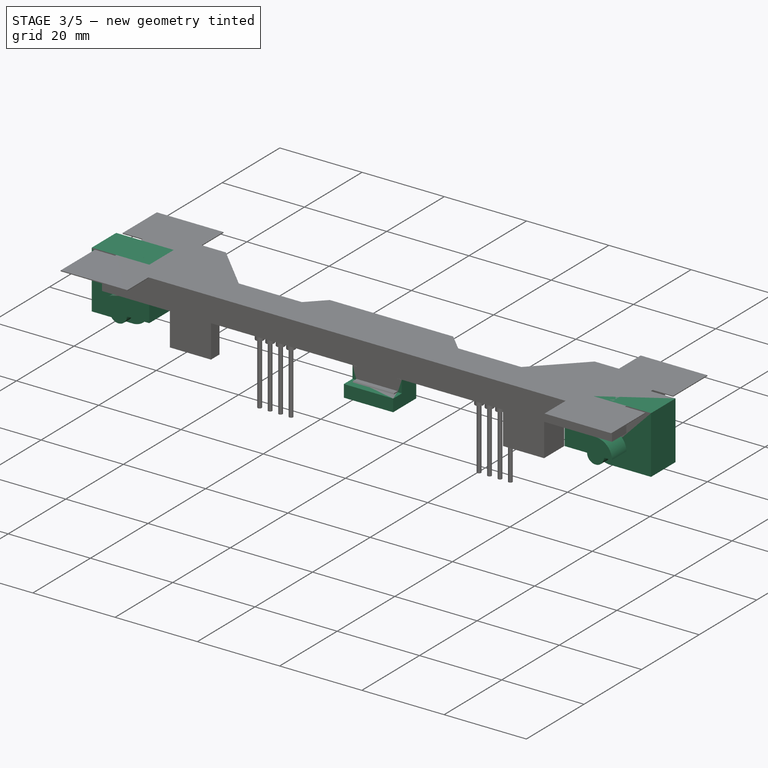
[diagram: stage 3 of 5 — iso view after this stage's code; geometry added in this stage tinted green]
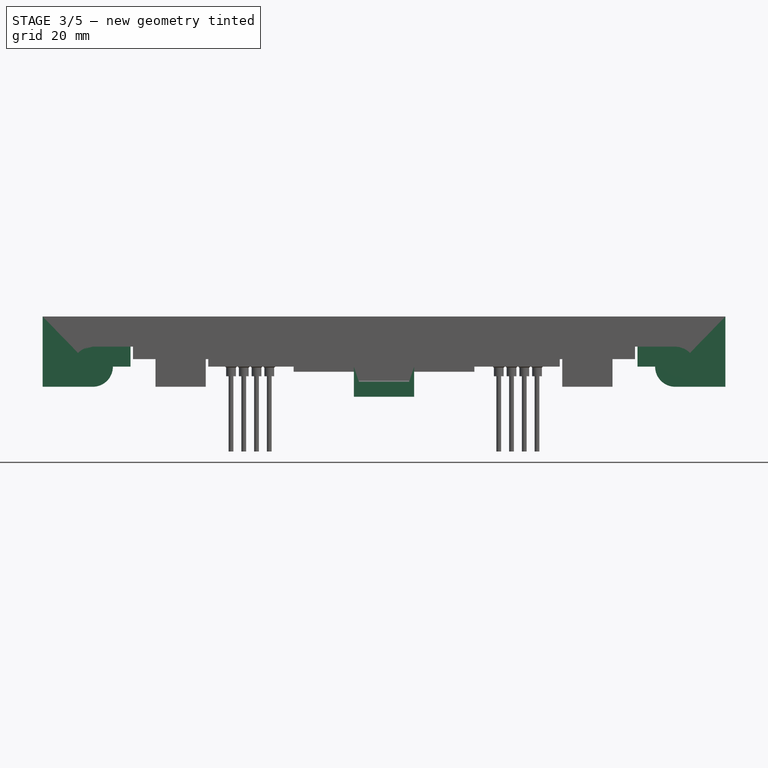
[diagram: stage 3 of 5 — front view after this stage's code; geometry added in this stage tinted green]
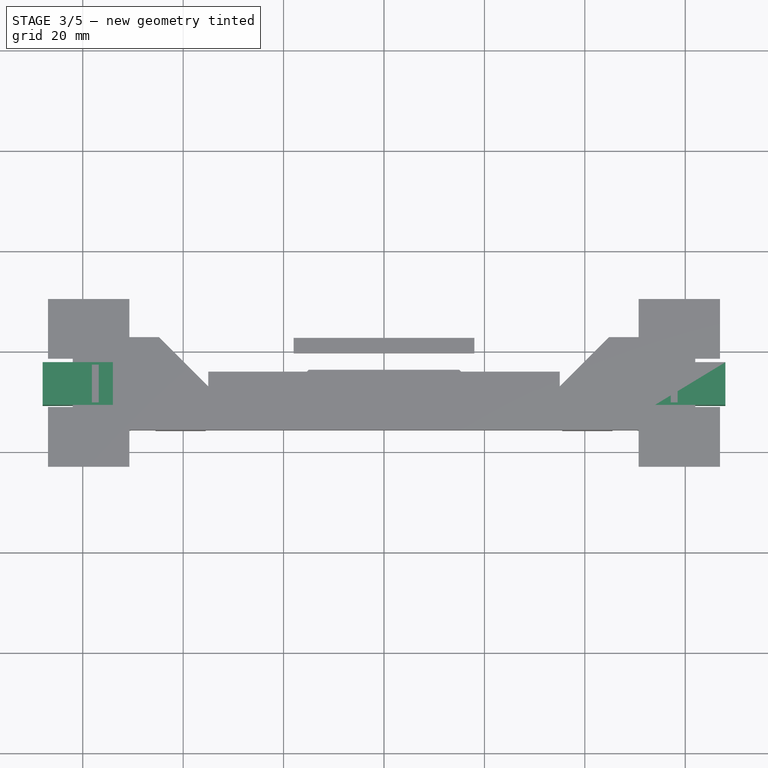
[diagram: stage 3 of 5 — top view after this stage's code; geometry added in this stage tinted green]
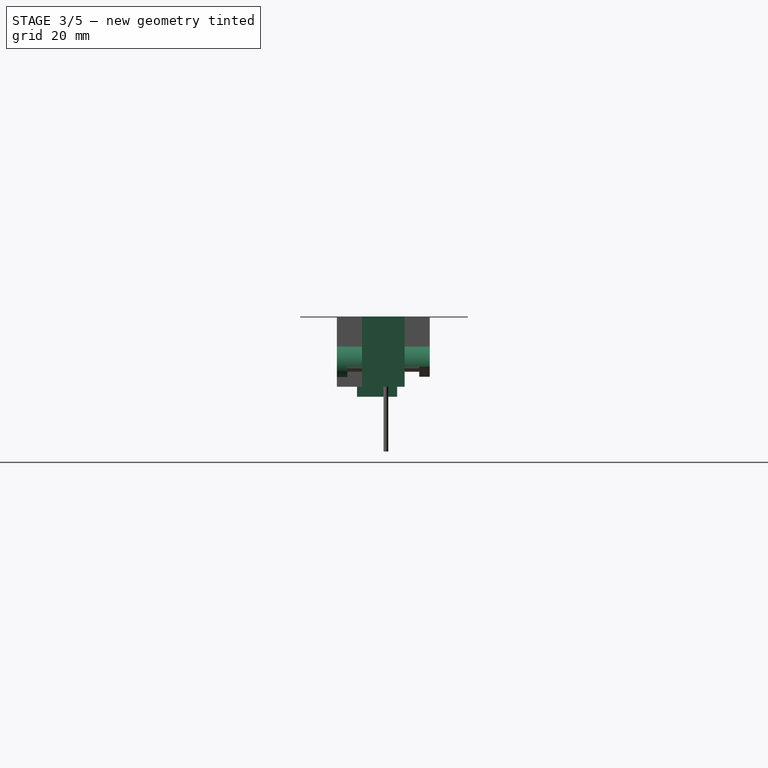
[diagram: stage 3 of 5 — right view after this stage's code; geometry added in this stage tinted green]
FEATURE [Sketcher::SketchObject] Sketch057
  FullyConstrained = false
  MapMode = 5
  Placement = pos=(0,0,0) rot=(0.57735,0.57735,0.57735;2.0944rad)
  Support = -> [YZ_Plane120]
  sketch-geometry (6):
    g0: LineSegment StartX=-9 StartY=0 StartZ=0 EndX=-4 EndY=0 EndZ=0
    g1: LineSegment StartX=-4 StartY=0 StartZ=0 EndX=-4 EndY=-6 EndZ=0
    g2: LineSegment StartX=-4 StartY=-6 StartZ=0 EndX=-12 EndY=-6 EndZ=0
    g3: LineSegment StartX=-9 StartY=0 StartZ=0 EndX=-9 EndY=-3 EndZ=0
    g4: LineSegment StartX=-9 StartY=-3 StartZ=0 EndX=-12 EndY=-3 EndZ=0
    g5: LineSegment StartX=-12 StartY=-3 StartZ=0 EndX=-12 EndY=-6 EndZ=0
  constraints (18):
    c: Coincident(g0,g1)
    c: Coincident(g1,g2)
    c: Horizontal(g0)
    c: Horizontal(g2)
    c: Vertical(g1)
    c: PointOnObject(g0,g-1)
    c: DistanceX(g0,g-1) = 4
    c: DistanceX(g0,g-1) = 9
    c: Coincident(g0,g3)
    c: Vertical(g3)
    c: Coincident(g3,g4)
    c: Horizontal(g4)
    c: Coincident(g4,g5)
    c: Vertical(g5)
    c: Coincident(g5,g2)
    c: DistanceY(g3,g-1) = 3
    c: DistanceX(g4,g-1) = 12
    c: DistanceY(g1,g-1) = 6
FEATURE [PartDesign::Pad] Pad031
  AllowMultiFace = false
  Direction = (1,1,1)
  Length = 12
  Length2 = 100
  Midplane = true
  Placement = pos=(0,0,0) rot=(0.57735,0.57735,0.57735;2.0944rad)
  Profile = -> Sketch057
  Type = 0
FEATURE [Sketcher::SketchObject] Sketch058
  ExternalGeometry = -> [Pad031]
  FullyConstrained = false
  MapMode = 5
  Placement = pos=(8e-16,-1.3e-15,-3) rot=(0,0,-1;1.5708rad)
  Support = -> [Pad031]
  sketch-geometry (6):
    g0: LineSegment StartX=9 StartY=-5 StartZ=0 EndX=9.3 EndY=-5 EndZ=0
    g1: LineSegment StartX=9.3 StartY=-5 StartZ=0 EndX=9.3 EndY=5 EndZ=0
    g2: LineSegment StartX=9.3 StartY=5 StartZ=0 EndX=9 EndY=5 EndZ=0
    g3: LineSegment StartX=9 StartY=5 StartZ=0 EndX=9 EndY=-5 EndZ=0
    g4: LineSegment StartX=9.3 StartY=5 StartZ=0 EndX=0 EndY=0 EndZ=0
    g5: LineSegment StartX=0 StartY=0 StartZ=0 EndX=9.3 EndY=-5 EndZ=0
  constraints (16):
    c: Coincident(g0,g1)
    c: Coincident(g1,g2)
    c: Coincident(g2,g3)
    c: Coincident(g3,g0)
    c: Horizontal(g0)
    c: Horizontal(g2)
    c: Vertical(g1)
    c: Vertical(g3)
    c: PointOnObject(g0,g-3)
    c: DistanceX(g2,g2) = 0.3
    c: DistanceY(g1,g1) = 10
    c: Coincident(g1,g4)
    c: Coincident(g4,g-1)
    c: Coincident(g4,g5)
    c: Coincident(g5,g0)
    c: Equal(g5,g4)
FEATURE [PartDesign::Pocket] Pocket014
  AllowMultiFace = false
  BaseFeature = -> Pad031
  Length = 5
  Length2 = 100
  Placement = pos=(0,0,0) rot=(0.57735,0.57735,0.57735;2.0944rad)
  Profile = -> Sketch058
  Type = 1
FEATURE [Sketcher::SketchObject] Sketch059
  AttachmentOffset = pos=(0,0,-2.5) rot=(0,0,1;0rad)
  FullyConstrained = false
  MapMode = 5
  Placement = pos=(0,2.5,6e-16) rot=(1,0,0;1.5708rad)
  Support = -> [XZ_Plane121]
  sketch-geometry (11):
    g0: ArcOfCircle CenterX=-58 CenterY=0 CenterZ=0 NormalX=0 NormalY=0 NormalZ=1 AngleXU=0 Radius=4 StartAngle=1.5708 EndAngle=3.14159
    g1: LineSegment StartX=-58 StartY=4 StartZ=0 EndX=-50.5 EndY=4 EndZ=0
    g2: LineSegment StartX=-62 StartY=5e-16 StartZ=0 EndX=-50.5 EndY=5e-16 EndZ=0
    g3: LineSegment StartX=-50.5 StartY=4 StartZ=0 EndX=-50.5 EndY=4e-16 EndZ=0
    g4: ArcOfCircle CenterX=58 CenterY=0 CenterZ=0 NormalX=0 NormalY=0 NormalZ=1 AngleXU=0 Radius=4 StartAngle=0 EndAngle=1.5708
    g5: LineSegment StartX=50.5 StartY=4 StartZ=0 EndX=58 EndY=4 EndZ=0
    g6: LineSegment StartX=-50.5 StartY=4 StartZ=0 EndX=0 EndY=4 EndZ=0
    g7: LineSegment StartX=0 StartY=4 StartZ=0 EndX=50.5 EndY=4 EndZ=0
    g8: LineSegment StartX=62 StartY=0 StartZ=0 EndX=62 EndY=-3.34086e-11 EndZ=0
    g9: LineSegment StartX=62 StartY=-3.34086e-11 StartZ=0 EndX=50.5 EndY=-3.34086e-11 EndZ=0
    g10: LineSegment StartX=50.5 StartY=-3.34086e-11 StartZ=0 EndX=50.5 EndY=4 EndZ=0
  constraints (31):
    c: PointOnObject(g0,g-1)
    c: PointOnObject(g0,g-1)
    c: Radius(g0) = 4
    c: Tangent(g1,g0) = 1.5708
    c: Horizontal(g1)
    c: DistanceX(g0,g-1) = 62
    c: DistanceX(g1,g-1) = 50.5
    c: Coincident(g2,g0)
    c: Horizontal(g2)
    c: Coincident(g3,g1)
    c: Coincident(g3,g2)
    c: Vertical(g3)
    c: PointOnObject(g4,g-1)
    c: PointOnObject(g4,g-1)
    c: Tangent(g5,g4) = 1.5708
    c: Horizontal(g5)
    c: Equal(g1,g5)
    c: Equal(g4,g0)
    c: Coincident(g1,g6)
    c: Horizontal(g6)
    c: Coincident(g6,g7)
    c: Coincident(g7,g5)
    c: Equal(g6,g7)
    c: PointOnObject(g6,g-2)
    c: Tangent(g4,g8) = 1.5708
    c: Coincident(g8,g9)
    c: PointOnObject(g9,g-1)
    c: Horizontal(g9)
    c: Coincident(g9,g10)
    c: Coincident(g10,g5)
    c: Vertical(g10)
FEATURE [PartDesign::Pad] Pad032
  AllowMultiFace = false
  Direction = (1,1,1)
  Length = 18.5
  Length2 = 100
  Placement = pos=(0,0,0) rot=(1,0,0;1.5708rad)
  Profile = -> Sketch059
  Type = 0
FEATURE [PartDesign::Body] Body013  label="feature_sidelatch_add_A"
  Group = -> [Sketch059,Pad032]
  Origin = -> Origin121
  Tip = -> Pad032
FEATURE [Sketcher::SketchObject] Sketch060
  AttachmentOffset = pos=(0,0,-2.5) rot=(0,0,1;0rad)
  FullyConstrained = false
  MapMode = 5
  Placement = pos=(0,2.5,6e-16) rot=(1,0,0;1.5708rad)
  Support = -> [XZ_Plane122]
  sketch-geometry (11):
    g0: ArcOfCircle CenterX=-58 CenterY=0 CenterZ=0 NormalX=0 NormalY=0 NormalZ=1 AngleXU=0 Radius=4 StartAngle=1.5708 EndAngle=3.14159
    g1: LineSegment StartX=-58 StartY=4 StartZ=0 EndX=-50.5 EndY=4 EndZ=0
    g2: LineSegment StartX=-62 StartY=4e-16 StartZ=0 EndX=-50.5 EndY=4e-16 EndZ=0
    g3: LineSegment StartX=-50.5 StartY=4 StartZ=0 EndX=-50.5 EndY=4e-16 EndZ=0
    g4: ArcOfCircle CenterX=58 CenterY=0 CenterZ=0 NormalX=0 NormalY=0 NormalZ=1 AngleXU=0 Radius=4 StartAngle=0 EndAngle=1.5708
    g5: LineSegment StartX=50.5 StartY=4 StartZ=0 EndX=58 EndY=4 EndZ=0
    g6: LineSegment StartX=-50.5 StartY=4 StartZ=0 EndX=0 EndY=4 EndZ=0
    g7: LineSegment StartX=0 StartY=4 StartZ=0 EndX=50.5 EndY=4 EndZ=0
    g8: LineSegment StartX=62 StartY=0 StartZ=0 EndX=62 EndY=-3.34086e-11 EndZ=0
    g9: LineSegment StartX=62 StartY=-3.34086e-11 StartZ=0 EndX=50.5 EndY=-3.34086e-11 EndZ=0
    g10: LineSegment StartX=50.5 StartY=-3.34086e-11 StartZ=0 EndX=50.5 EndY=4 EndZ=0
  constraints (31):
    c: PointOnObject(g0,g-1)
    c: PointOnObject(g0,g-1)
    c: Radius(g0) = 4
    c: Tangent(g1,g0) = 1.5708
    c: Horizontal(g1)
    c: DistanceX(g0,g-1) = 62
    c: DistanceX(g1,g-1) = 50.5
    c: Coincident(g2,g0)
    c: Horizontal(g2)
    c: Coincident(g3,g1)
    c: Coincident(g3,g2)
    c: Vertical(g3)
    c: PointOnObject(g4,g-1)
    c: PointOnObject(g4,g-1)
    c: Tangent(g5,g4) = 1.5708
    c: Horizontal(g5)
    c: Equal(g1,g5)
    c: Equal(g4,g0)
    c: Coincident(g1,g6)
    c: Horizontal(g6)
    c: Coincident(g6,g7)
    c: Coincident(g7,g5)
    c: Equal(g6,g7)
    c: PointOnObject(g6,g-2)
    c: Tangent(g4,g8) = 1.5708
    c: Coincident(g8,g9)
    c: PointOnObject(g9,g-1)
    c: Horizontal(g9)
    c: Coincident(g9,g10)
    c: Coincident(g10,g5)
    c: Vertical(g10)
FEATURE [PartDesign::Pad] Pad033
  AllowMultiFace = false
  Direction = (1,1,1)
  Length = 18.5
  Length2 = 100
  Placement = pos=(0,0,0) rot=(1,0,0;1.5708rad)
  Profile = -> Sketch060
  Type = 0
FEATURE [Sketcher::SketchObject] Sketch063
  AttachmentOffset = pos=(0,0,-2.5) rot=(0,0,1;0rad)
  FullyConstrained = false
  MapMode = 5
  Placement = pos=(0,2.5,6e-16) rot=(1,0,0;1.5708rad)
  Support = -> [XZ_Plane125]
  sketch-geometry (7):
    g0: LineSegment StartX=-56.8453 StartY=-2 StartZ=0 EndX=-55.6906 EndY=-9e-16 EndZ=0
    g1: LineSegment StartX=-55.6906 StartY=-8e-16 StartZ=0 EndX=-56.8453 EndY=2 EndZ=0
    g2: LineSegment StartX=-56.8453 StartY=2 StartZ=0 EndX=-59.1547 EndY=2 EndZ=0
    g3: LineSegment StartX=-59.1547 StartY=2 StartZ=0 EndX=-60.3094 EndY=-9e-16 EndZ=0
    g4: LineSegment StartX=-60.3094 StartY=-7e-16 StartZ=0 EndX=-59.1547 EndY=-2 EndZ=0
    g5: LineSegment StartX=-59.1547 StartY=-2 StartZ=0 EndX=-56.8453 EndY=-2 EndZ=0
    g6: Circle CenterX=-58 CenterY=0 CenterZ=0 NormalX=0 NormalY=0 NormalZ=1 AngleXU=0 Radius=2.3094
  constraints (17):
    c: Coincident(g0,g1)
    c: Coincident(g1,g2)
    c: Coincident(g2,g3)
    c: Coincident(g3,g4)
    c: Coincident(g4,g5)
    c: Coincident(g5,g0)
    c: Equal(g0, g1-g5) x5
    c: PointOnObject(g0,g6)
    c: PointOnObject(g1,g6)
    c: PointOnObject(g2,g6)
    c: PointOnObject(g3,g6)
    c: PointOnObject(g4,g6)
    c: PointOnObject(g5,g6)
    c: PointOnObject(g6,g-1)
    c: DistanceX(g6,g-1) = 58
    c: Horizontal(g2)
    c: DistanceY(g4,g2) = 4
FEATURE [PartDesign::Pad] Pad036
  AllowMultiFace = false
  Direction = (1,1,1)
  Length = 2.1
  Length2 = 100
  Placement = pos=(0,0,0) rot=(1,0,0;1.5708rad)
  Profile = -> Sketch063
  Type = 0
FEATURE [Sketcher::SketchObject] Sketch064
  FullyConstrained = false
  MapMode = 5
  Placement = pos=(0,0.4,1e-16) rot=(1,0,0;1.5708rad)
  Support = -> [Pad036]
  sketch-geometry (1):
    g0: Circle CenterX=-58 CenterY=0 CenterZ=0 NormalX=0 NormalY=0 NormalZ=1 AngleXU=0 Radius=1
  constraints (3):
    c: PointOnObject(g0,g-1)
    c: DistanceX(g0,g-1) = 58
    c: Diameter(g0) = 2
FEATURE [PartDesign::Pad] Pad037
  AllowMultiFace = false
  BaseFeature = -> Pad036
  Direction = (1,1,1)
  Length = 14.3
  Length2 = 100
  Placement = pos=(0,0,0) rot=(1,0,0;1.5708rad)
  Profile = -> Sketch064
  Type = 0
FEATURE [Sketcher::SketchObject] Sketch065
  FullyConstrained = false
  MapMode = 5
  Placement = pos=(0,-13.9,-2.6e-15) rot=(1,0,0;1.5708rad)
  Support = -> [Pad037]
  sketch-geometry (1):
    g0: Circle CenterX=-58 CenterY=0 CenterZ=0 NormalX=0 NormalY=0 NormalZ=1 AngleXU=0 Radius=2.05
  constraints (3):
    c: PointOnObject(g0,g-1)
    c: Diameter(g0) = 4.1
    c: DistanceX(g0,g-1) = 58
FEATURE [PartDesign::Pad] Pad004
  AllowMultiFace = false
  BaseFeature = -> Pad037
  Direction = (1,1,1)
  Length = 2.1
  Length2 = 100
  Placement = pos=(0,0,0) rot=(1,0,0;1.5708rad)
  Profile = -> Sketch065
  Type = 0
FEATURE [Sketcher::SketchObject] Sketch005
  AttachmentOffset = pos=(0,0,2.5) rot=(0,0,1;0rad)
  FullyConstrained = false
  MapMode = 5
  Placement = pos=(0,-2.5,-6e-16) rot=(1,0,0;1.5708rad)
  Support = -> [XZ_Plane125]
  sketch-geometry (5):
    g0: LineSegment StartX=-68 StartY=10 StartZ=0 EndX=-54 EndY=10 EndZ=0
    g1: LineSegment StartX=-54 StartY=10 StartZ=0 EndX=-54 EndY=8.029e-13 EndZ=0
    g2: LineSegment StartX=-58 StartY=-4 StartZ=0 EndX=-68 EndY=-4 EndZ=0
    g3: LineSegment StartX=-68 StartY=-4 StartZ=0 EndX=-68 EndY=10 EndZ=0
    g4: ArcOfCircle CenterX=-58 CenterY=0 CenterZ=0 NormalX=0 NormalY=0 NormalZ=1 AngleXU=0 Radius=4 StartAngle=4.71239 EndAngle=6.28319
  constraints (14):
    c: Coincident(g0,g1)
    c: Coincident(g2,g3)
    c: Coincident(g3,g0)
    c: Horizontal(g0)
    c: Horizontal(g2)
    c: Vertical(g1)
    c: Vertical(g3)
    c: Tangent(g2,g4) = 1.5708
    c: Tangent(g1,g4) = 1.5708
    c: PointOnObject(g4,g-1)
    c: DistanceX(g4,g-1) = 58
    c: DistanceY(g2,g-1) = 4
    c: Equal(g1,g2)
    c: DistanceY(g1,g1) = 10
FEATURE [PartDesign::Pad] Pad038
  AllowMultiFace = false
  BaseFeature = -> Pad004
  Direction = (1,1,1)
  Length = 8.5
  Length2 = 100
  Placement = pos=(0,0,0) rot=(1,0,0;1.5708rad)
  Profile = -> Sketch005
  Type = 0
FEATURE [Sketcher::SketchObject] Sketch066
  FullyConstrained = true
  MapMode = 5
  Placement = pos=(0,-13.9,-2.6e-15) rot=(1,0,0;1.5708rad)
  Support = -> [Pad041]
  sketch-geometry (1):
    g0: Circle CenterX=58 CenterY=0 CenterZ=0 NormalX=0 NormalY=0 NormalZ=1 AngleXU=0 Radius=2.05
  constraints (3):
    c: PointOnObject(g0,g-1)
    c: Diameter(g0) = 4.1
    c: DistanceX(g0,g-1) = -58
FEATURE [PartDesign::Pad] Pad042
  AllowMultiFace = false
  BaseFeature = -> Pad041
  Direction = (1,1,1)
  Length = 2.1
  Length2 = 100
  Placement = pos=(0,0,0) rot=(1,0,0;1.5708rad)
  Profile = -> Sketch066
  Type = 0
FEATURE [Sketcher::SketchObject] Sketch009
  AttachmentOffset = pos=(0,0,2.5) rot=(0,0,1;0rad)
  FullyConstrained = false
  MapMode = 5
  Placement = pos=(0,-2.5,-6e-16) rot=(1,0,0;1.5708rad)
  Support = -> [XZ_Plane126]
  sketch-geometry (5):
    g0: LineSegment StartX=54 StartY=10 StartZ=0 EndX=68 EndY=10 EndZ=0
    g1: LineSegment StartX=68 StartY=10 StartZ=0 EndX=68 EndY=-4 EndZ=0
    g2: LineSegment StartX=68 StartY=-4 StartZ=0 EndX=58 EndY=-4 EndZ=0
    g3: LineSegment StartX=54 StartY=5e-16 StartZ=0 EndX=54 EndY=10 EndZ=0
    g4: ArcOfCircle CenterX=58 CenterY=0 CenterZ=0 NormalX=0 NormalY=0 NormalZ=1 AngleXU=0 Radius=4 StartAngle=3.14159 EndAngle=4.71239
  constraints (14):
    c: Coincident(g0,g1)
    c: Coincident(g1,g2)
    c: Coincident(g3,g0)
    c: Horizontal(g0)
    c: Horizontal(g2)
    c: Vertical(g1)
    c: Vertical(g3)
    c: Tangent(g3,g4) = 1.5708
    c: Tangent(g2,g4) = 1.5708
    c: Radius(g4) = 4
    c: PointOnObject(g4,g-1)
    c: Equal(g3,g2)
    c: DistanceY(g3,g3) = 10
    c: DistanceX(g-1,g4) = 58
FEATURE [PartDesign::Pad] Pad040
  AllowMultiFace = false
  BaseFeature = -> Pad042
  Direction = (1,1,1)
  Length = 8.5
  Length2 = 100
  Placement = pos=(0,0,0) rot=(1,0,0;1.5708rad)
  Profile = -> Sketch009
  Type = 0
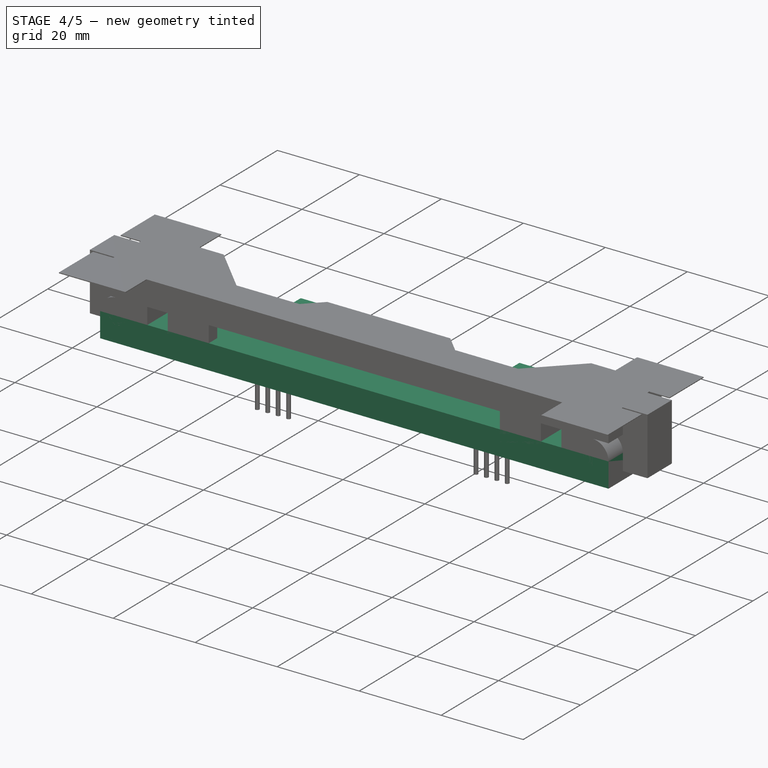
[diagram: stage 4 of 5 — iso view after this stage's code; geometry added in this stage tinted green]
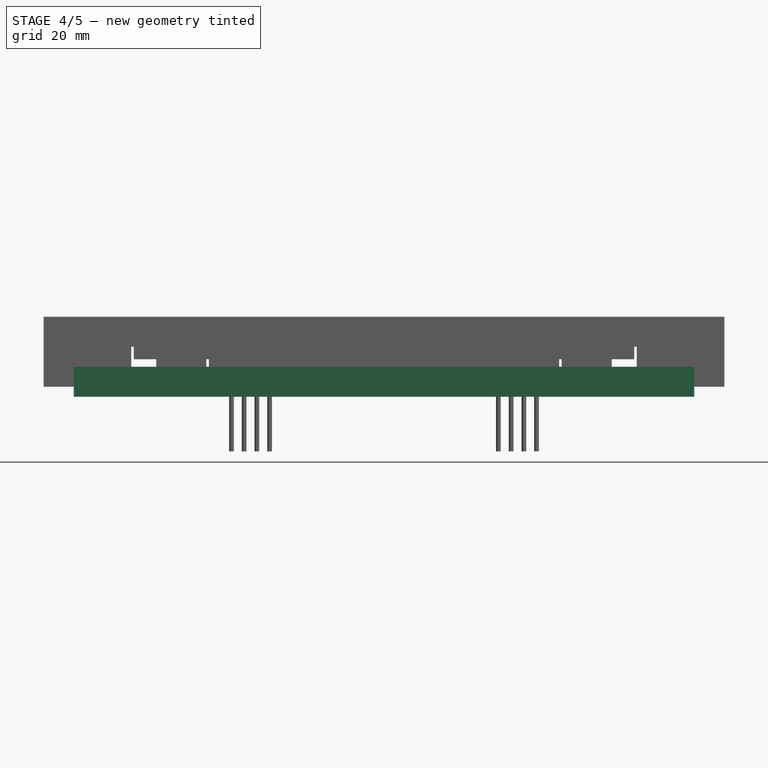
[diagram: stage 4 of 5 — front view after this stage's code; geometry added in this stage tinted green]
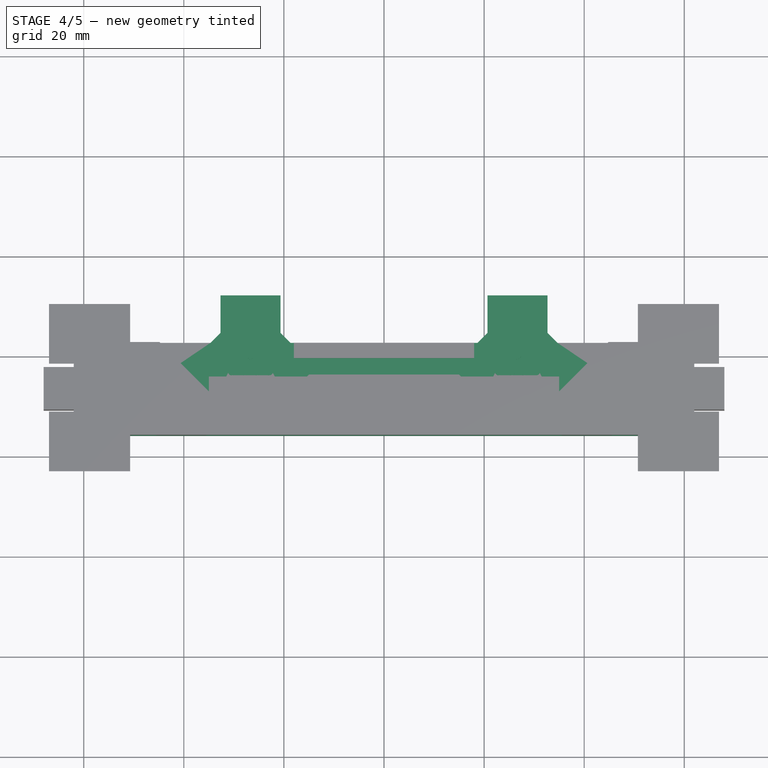
[diagram: stage 4 of 5 — top view after this stage's code; geometry added in this stage tinted green]
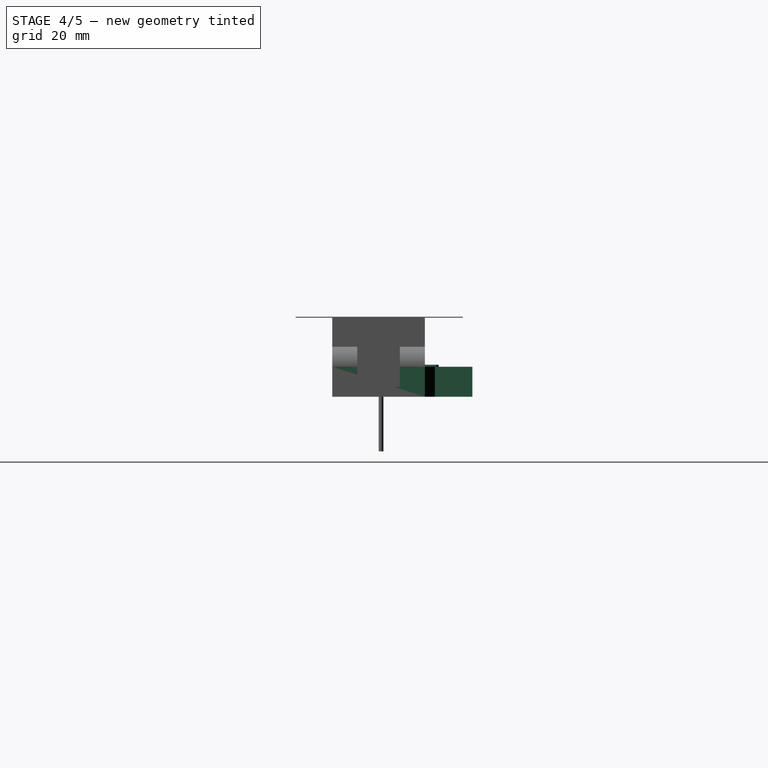
[diagram: stage 4 of 5 — right view after this stage's code; geometry added in this stage tinted green]
FEATURE [PartDesign::Body] Body002  label="Latch"
  Group = -> [Sketch018,Pad005,Chamfer004]
  Origin = -> Origin073
  Tip = -> Chamfer004
FEATURE [Sketcher::SketchObject] Sketch043
  FullyConstrained = false
  MapMode = 5
  Support = -> [XY_Plane111]
  sketch-geometry (21):
    g0: LineSegment StartX=62 StartY=2.5 StartZ=0 EndX=62 EndY=-16 EndZ=0
    g1: LineSegment StartX=62 StartY=-16 StartZ=0 EndX=-62 EndY=-16 EndZ=0
    g2: LineSegment StartX=-62 StartY=-16 StartZ=0 EndX=-62 EndY=2.5 EndZ=0
    g3: LineSegment StartX=-62 StartY=2.5 StartZ=0 EndX=0 EndY=-6.75 EndZ=0
    g4: LineSegment StartX=0 StartY=-6.75 StartZ=0 EndX=-62 EndY=-16 EndZ=0
    g5: LineSegment StartX=0 StartY=-6.75 StartZ=0 EndX=62 EndY=2.5 EndZ=0
    g6: LineSegment StartX=-62 StartY=2.5 StartZ=0 EndX=-34.67 EndY=2.5 EndZ=0
    g7: LineSegment StartX=-34.67 StartY=2.5 StartZ=0 EndX=-32.67 EndY=4.5 EndZ=0
    g8: LineSegment StartX=-32.67 StartY=4.5 StartZ=0 EndX=-32.67 EndY=12 EndZ=0
    g9: LineSegment StartX=-32.67 StartY=12 StartZ=0 EndX=-20.67 EndY=12 EndZ=0
    g10: LineSegment StartX=-20.67 StartY=12 StartZ=0 EndX=-20.67 EndY=4.5 EndZ=0
    g11: LineSegment StartX=-20.67 StartY=4.5 StartZ=0 EndX=-18.67 EndY=2.5 EndZ=0
    g12: LineSegment StartX=-18.67 StartY=2.5 StartZ=0 EndX=18.67 EndY=2.5 EndZ=0
    g13: LineSegment StartX=18.67 StartY=2.5 StartZ=0 EndX=20.67 EndY=4.5 EndZ=0
    g14: LineSegment StartX=20.67 StartY=4.5 StartZ=0 EndX=20.67 EndY=12 EndZ=0
    g15: LineSegment StartX=20.67 StartY=12 StartZ=0 EndX=32.67 EndY=12 EndZ=0
    g16: LineSegment StartX=32.67 StartY=12 StartZ=0 EndX=32.67 EndY=4.5 EndZ=0
    g17: LineSegment StartX=32.67 StartY=4.5 StartZ=0 EndX=34.67 EndY=2.5 EndZ=0
    g18: LineSegment StartX=34.67 StartY=2.5 StartZ=0 EndX=62 EndY=2.5 EndZ=0
    g19: LineSegment StartX=-32.67 StartY=12 StartZ=0 EndX=-26.67 EndY=0 EndZ=0
    g20: LineSegment StartX=-26.67 StartY=0 StartZ=0 EndX=-20.67 EndY=12 EndZ=0
  constraints (60):
    c: Coincident(g0,g1)
    c: Coincident(g1,g2)
    c: Horizontal(g1)
    c: Vertical(g0)
    c: Vertical(g2)
    c: DistanceX(g2,g0) = 124
    c: PointOnObject(g3,g-2)
    c: Coincident(g3,g4)
    c: Coincident(g4,g1)
    c: Coincident(g3,g5)
    c: Equal(g5,g3)
    c: Equal(g3,g4)
    c: DistanceY(g3,g-1) = 6.75
    c: DistanceY(g2,g2) = 18.5
    c: Coincident(g2,g6)
    c: Horizontal(g6)
    c: Coincident(g6,g7)
    c: Coincident(g7,g8)
    c: Vertical(g8)
    c: Coincident(g8,g9)
    c: Horizontal(g9)
    c: Coincident(g9,g10)
    c: Coincident(g10,g11)
    c: Coincident(g11,g12)
    c: Horizontal(g12)
    c: Coincident(g12,g13)
    c: Coincident(g13,g14)
    c: Vertical(g14)
    c: Coincident(g14,g15)
    c: Horizontal(g15)
    c: Coincident(g15,g16)
    c: Vertical(g16)
    c: Coincident(g16,g17)
    c: Coincident(g17,g18)
    c: Coincident(g18,g0)
    c: Horizontal(g18)
    c: Vertical(g10)
    c: Equal(g7,g11)
    c: Equal(g11,g13)
    c: Equal(g13,g17)
    c: Equal(g8,g10)
    c: Equal(g10,g14)
    c: Equal(g14,g16)
    c: Equal(g9,g15)
    c: Equal(g18,g6)
    c: Angle(g7,g6) = 2.35619
    c: Angle(g12,g11) = 2.35619
    c: Angle(g13,g12) = 2.35619
    c: Angle(g18,g17) = 2.35619
    c: Coincident(g3,g2)
    c: Coincident(g5,g0)
    c: Coincident(g8,g19)
    c: PointOnObject(g19,g-1)
    c: Coincident(g19,g20)
    c: Coincident(g20,g9)
    c: DistanceX(g19,g3) = 26.67
    c: Equal(g20,g19)
    c: DistanceX(g9,g9) = 12
    c: DistanceX(g6,g7) = 2
    c: DistanceY(g2,g8) = 9.5
FEATURE [PartDesign::Pad] Pad018
  AllowMultiFace = false
  Direction = (1,1,1)
  Length = 6
  Length2 = 100
  Profile = -> Sketch043
  Reversed = true
  Type = 0
FEATURE [App::VRMLObject] INTERFACE
  Placement = pos=(0,0,0.5) rot=(0,0,1;0rad)
FEATURE [App::VRMLObject] FFC
  Placement = pos=(26.67,-4.75,-0.05) rot=(0,0,1;0rad)
FEATURE [App::VRMLObject] FFC001  label="FFC2"
  Placement = pos=(-26.67,-4.75,-0.05) rot=(0,0,1;0rad)
FEATURE [Sketcher::SketchObject] Sketch047
  FullyConstrained = false
  MapMode = 5
  Support = -> [XY_Plane113]
  sketch-geometry (4):
    g0: ArcOfCircle CenterX=-26.67 CenterY=4.5 CenterZ=0 NormalX=0 NormalY=0 NormalZ=1 AngleXU=0 Radius=0.75 StartAngle=3e-16 EndAngle=3.14159
    g1: ArcOfCircle CenterX=-26.67 CenterY=-3e-16 CenterZ=0 NormalX=0 NormalY=0 NormalZ=1 AngleXU=0 Radius=0.75 StartAngle=3.14159 EndAngle=6.28319
    g2: LineSegment StartX=-27.42 StartY=4.5 StartZ=0 EndX=-27.42 EndY=0 EndZ=0
    g3: LineSegment StartX=-25.92 StartY=4.5 StartZ=0 EndX=-25.92 EndY=0 EndZ=0
  constraints (10):
    c: Tangent(g0,g3) = 1.5708
    c: Tangent(g0,g2) = -1.5708
    c: Tangent(g2,g1) = -1.5708
    c: Tangent(g3,g1) = 1.5708
    c: Vertical(g2)
    c: Equal(g0,g1)
    c: Diameter(g0) = 1.5
    c: DistanceX(g0,g-1) = 26.67
    c: DistanceY(g-1,g0) = 4.5
    c: DistanceY(g1,g0) = 4.5
FEATURE [PartDesign::Pad] Pad022
  AllowMultiFace = false
  Direction = (1,1,1)
  Length = 0.8
  Length2 = 100
  Midplane = true
  Profile = -> Sketch047
  Type = 0
FEATURE [PartDesign::Body] Body005  label="feature_ffc_positioner_a"
  Group = -> [Sketch047,Pad022]
  Origin = -> Origin113
  Tip = -> Pad022
FEATURE [Sketcher::SketchObject] Sketch048
  FullyConstrained = false
  MapMode = 5
  Support = -> [XY_Plane114]
  sketch-geometry (4):
    g0: ArcOfCircle CenterX=26.67 CenterY=4.5 CenterZ=0 NormalX=0 NormalY=0 NormalZ=1 AngleXU=0 Radius=0.75 StartAngle=1.03e-13 EndAngle=3.14159
    g1: ArcOfCircle CenterX=26.67 CenterY=3e-16 CenterZ=0 NormalX=0 NormalY=0 NormalZ=1 AngleXU=0 Radius=0.75 StartAngle=3.14159 EndAngle=6.28319
    g2: LineSegment StartX=25.92 StartY=4.5 StartZ=0 EndX=25.92 EndY=-9.8e-15 EndZ=0
    g3: LineSegment StartX=27.42 StartY=4.5 StartZ=0 EndX=27.42 EndY=1.368e-13 EndZ=0
  constraints (10):
    c: Tangent(g0,g3) = 1.5708
    c: Tangent(g0,g2) = -1.5708
    c: Tangent(g2,g1) = -1.5708
    c: Tangent(g3,g1) = 1.5708
    c: Vertical(g2)
    c: Equal(g0,g1)
    c: Diameter(g0) = 1.5
    c: DistanceY(g-1,g0) = 4.5
    c: DistanceY(g1,g0) = 4.5
    c: DistanceX(g-1,g1) = 26.67
FEATURE [PartDesign::Pad] Pad023
  AllowMultiFace = false
  Direction = (1,1,1)
  Length = 0.8
  Length2 = 100
  Midplane = true
  Profile = -> Sketch048
  Type = 0
FEATURE [PartDesign::Body] Body006  label="feature_ffc_positioner_b"
  Group = -> [Sketch048,Pad023]
  Origin = -> Origin114
  Tip = -> Pad023
FEATURE [Sketcher::SketchObject] Sketch049
  FullyConstrained = false
  MapMode = 5
  Support = -> [XY_Plane115]
  sketch-geometry (21):
    g0: LineSegment StartX=22.17 StartY=-1 StartZ=0 EndX=22.17 EndY=9.75 EndZ=0
    g1: LineSegment StartX=22.17 StartY=9.75 StartZ=0 EndX=22.67 EndY=10.25 EndZ=0
    g2: LineSegment StartX=22.67 StartY=10.25 StartZ=0 EndX=30.67 EndY=10.25 EndZ=0
    g3: LineSegment StartX=30.67 StartY=10.25 StartZ=0 EndX=31.17 EndY=9.75 EndZ=0
    g4: LineSegment StartX=31.17 StartY=9.75 StartZ=0 EndX=31.17 EndY=-1 EndZ=0
    g5: LineSegment StartX=31.17 StartY=-1 StartZ=0 EndX=31.92 EndY=-1.75 EndZ=0
    g6: LineSegment StartX=31.92 StartY=-1.75 StartZ=0 EndX=31.92 EndY=-5 EndZ=0
    g7: LineSegment StartX=31.92 StartY=-5 StartZ=0 EndX=21.42 EndY=-5 EndZ=0
    g8: LineSegment StartX=21.42 StartY=-5 StartZ=0 EndX=21.42 EndY=-1.75 EndZ=0
    g9: LineSegment StartX=21.42 StartY=-1.75 StartZ=0 EndX=22.17 EndY=-1 EndZ=0
    g10: LineSegment StartX=22.67 StartY=10.25 StartZ=0 EndX=26.67 EndY=0 EndZ=0
    g11: LineSegment StartX=26.67 StartY=0 StartZ=0 EndX=30.67 EndY=10.25 EndZ=0
    g12: Circle CenterX=22.92 CenterY=-3.25 CenterZ=0 NormalX=0 NormalY=0 NormalZ=1 AngleXU=0 Radius=0.75
    g13: Circle CenterX=25.42 CenterY=-3.25 CenterZ=0 NormalX=0 NormalY=0 NormalZ=1 AngleXU=0 Radius=0.75
    g14: Circle CenterX=27.92 CenterY=-3.25 CenterZ=0 NormalX=0 NormalY=0 NormalZ=1 AngleXU=0 Radius=0.75
    g15: Circle CenterX=30.42 CenterY=-3.25 CenterZ=0 NormalX=0 NormalY=0 NormalZ=1 AngleXU=0 Radius=0.75
    g16: LineSegment StartX=22.92 StartY=-3.25 StartZ=0 EndX=25.42 EndY=-3.25 EndZ=0
    g17: LineSegment StartX=25.42 StartY=-3.25 StartZ=0 EndX=27.92 EndY=-3.25 EndZ=0
    g18: LineSegment StartX=27.92 StartY=-3.25 StartZ=0 EndX=30.42 EndY=-3.25 EndZ=0
    g19: LineSegment StartX=25.42 StartY=-3.25 StartZ=0 EndX=26.67 EndY=0 EndZ=0
    g20: LineSegment StartX=26.67 StartY=0 StartZ=0 EndX=27.92 EndY=-3.25 EndZ=0
  constraints (57):
    c: Vertical(g0)
    c: Coincident(g0,g1)
    c: Coincident(g1,g2)
    c: Horizontal(g2)
    c: Coincident(g2,g3)
    c: Coincident(g3,g4)
    c: Vertical(g4)
    c: Coincident(g4,g5)
    c: Coincident(g5,g6)
    c: Vertical(g6)
    c: Coincident(g6,g7)
    c: Horizontal(g7)
    c: Coincident(g7,g8)
    c: Vertical(g8)
    c: Coincident(g8,g9)
    c: Coincident(g9,g0)
    c: Angle(g1,g2) = 2.35619
    c: Parallel(g1,g9)
    c: Parallel(g3,g5)
    c: Perpendicular(g1,g3)
    c: Equal(g4,g0)
    c: Equal(g1,g3)
    c: Equal(g9,g5)
    c: Coincident(g1,g10)
    c: PointOnObject(g10,g-1)
    c: Coincident(g10,g11)
    c: Coincident(g11,g2)
    c: DistanceX(g-1,g10) = 26.67
    c: Equal(g10,g11)
    c: DistanceY(g10,g1) = 10.25
    c: DistanceX(g0,g3) = 9
    c: DistanceY(g7,g10) = 5
    c: DistanceX(g7,g7) = 10.5
    c: DistanceY(g8,g8) = 3.25
    c: DistanceX(g2,g2) = 8
    c: Coincident(g16,g12)
    c: Coincident(g16,g13)
    c: Coincident(g16,g17)
    c: Coincident(g17,g14)
    c: Coincident(g17,g18)
    c: Coincident(g18,g15)
    c: Horizontal(g18)
    c: Horizontal(g17)
    c: Horizontal(g16)
    c: Equal(g16,g17)
    c: Equal(g17,g18)
    c: Coincident(g19,g13)
    c: Coincident(g19,g10)
    c: Coincident(g19,g20)
    c: Coincident(g20,g14)
    c: Equal(g20,g19)
    c: DistanceX(g16,g16) = 2.5
    c: Diameter(g12) = 1.5
    c: DistanceY(g12,g10) = 3.25
    c: Equal(g13,g14)
    c: Equal(g14,g15)
    c: Equal(g15,g12)
FEATURE [PartDesign::Pad] Pad024
  AllowMultiFace = false
  Direction = (1,1,1)
  Length = 0.1
  Length2 = 100
  Profile = -> Sketch049
  Reversed = true
  Type = 0
FEATURE [Sketcher::SketchObject] Sketch050
  ExternalGeometry = -> [Pad024]
  FullyConstrained = false
  MapMode = 5
  Placement = pos=(0,0,-0.1) rot=(1,0,0;3.14159rad)
  Support = -> [Pad024]
  sketch-geometry (6):
    g0: LineSegment StartX=22.17 StartY=-9.75 StartZ=0 EndX=22.17 EndY=-5.65 EndZ=0
    g1: LineSegment StartX=22.17 StartY=-5.65 StartZ=0 EndX=31.17 EndY=-5.65 EndZ=0
    g2: LineSegment StartX=31.17 StartY=-5.65 StartZ=0 EndX=31.17 EndY=-9.75 EndZ=0
    g3: LineSegment StartX=31.17 StartY=-9.75 StartZ=0 EndX=30.67 EndY=-10.25 EndZ=0
    g4: LineSegment StartX=30.67 StartY=-10.25 StartZ=0 EndX=22.67 EndY=-10.25 EndZ=0
    g5: LineSegment StartX=22.67 StartY=-10.25 StartZ=0 EndX=22.17 EndY=-9.75 EndZ=0
  constraints (14):
    c: Coincident(g-4,g0)
    c: Vertical(g0)
    c: Coincident(g0,g1)
    c: Horizontal(g1)
    c: Coincident(g1,g2)
    c: Coincident(g2,g-5)
    c: Vertical(g2)
    c: Coincident(g2,g3)
    c: Coincident(g3,g-5)
    c: Coincident(g3,g4)
    c: Coincident(g4,g-4)
    c: Coincident(g4,g5)
    c: Coincident(g5,g0)
    c: DistanceY(g4,g0) = 4.6
FEATURE [PartDesign::Pad] Pad025
  AllowMultiFace = false
  BaseFeature = -> Pad024
  Direction = (1,1,1)
  Length = 0.2
  Length2 = 100
  Profile = -> Sketch050
  Refine = true
  Type = 0
FEATURE [PartDesign::Body] Body007  label="feature_ffc_cutout_A"
  Group = -> [Sketch049,Pad024,Sketch050,Pad025]
  Origin = -> Origin115
  Tip = -> Pad025
FEATURE [Sketcher::SketchObject] Sketch051
  FullyConstrained = false
  MapMode = 5
  Support = -> [XY_Plane116]
  sketch-geometry (21):
    g0: LineSegment StartX=-31.17 StartY=-1 StartZ=0 EndX=-31.17 EndY=9.75 EndZ=0
    g1: LineSegment StartX=-31.17 StartY=9.75 StartZ=0 EndX=-30.67 EndY=10.25 EndZ=0
    g2: LineSegment StartX=-30.67 StartY=10.25 StartZ=0 EndX=-22.67 EndY=10.25 EndZ=0
    g3: LineSegment StartX=-22.67 StartY=10.25 StartZ=0 EndX=-22.17 EndY=9.75 EndZ=0
    g4: LineSegment StartX=-22.17 StartY=9.75 StartZ=0 EndX=-22.17 EndY=-1 EndZ=0
    g5: LineSegment StartX=-22.17 StartY=-1 StartZ=0 EndX=-21.42 EndY=-1.75 EndZ=0
    g6: LineSegment StartX=-21.42 StartY=-1.75 StartZ=0 EndX=-21.42 EndY=-5 EndZ=0
    g7: LineSegment StartX=-21.42 StartY=-5 StartZ=0 EndX=-31.92 EndY=-5 EndZ=0
    g8: LineSegment StartX=-31.92 StartY=-5 StartZ=0 EndX=-31.92 EndY=-1.75 EndZ=0
    g9: LineSegment StartX=-31.92 StartY=-1.75 StartZ=0 EndX=-31.17 EndY=-1 EndZ=0
    g10: LineSegment StartX=-30.67 StartY=10.25 StartZ=0 EndX=-26.67 EndY=0 EndZ=0
    g11: LineSegment StartX=-26.67 StartY=0 StartZ=0 EndX=-22.67 EndY=10.25 EndZ=0
    g12: Circle CenterX=-30.42 CenterY=-3.25 CenterZ=0 NormalX=0 NormalY=0 NormalZ=1 AngleXU=0 Radius=0.75
    g13: Circle CenterX=-27.92 CenterY=-3.25 CenterZ=0 NormalX=0 NormalY=0 NormalZ=1 AngleXU=0 Radius=0.75
    g14: Circle CenterX=-25.42 CenterY=-3.25 CenterZ=0 NormalX=0 NormalY=0 NormalZ=1 AngleXU=0 Radius=0.75
    g15: Circle CenterX=-22.92 CenterY=-3.25 CenterZ=0 NormalX=0 NormalY=0 NormalZ=1 AngleXU=0 Radius=0.75
    g16: LineSegment StartX=-30.42 StartY=-3.25 StartZ=0 EndX=-27.92 EndY=-3.25 EndZ=0
    g17: LineSegment StartX=-27.92 StartY=-3.25 StartZ=0 EndX=-25.42 EndY=-3.25 EndZ=0
    g18: LineSegment StartX=-25.42 StartY=-3.25 StartZ=0 EndX=-22.92 EndY=-3.25 EndZ=0
    g19: LineSegment StartX=-27.92 StartY=-3.25 StartZ=0 EndX=-26.67 EndY=0 EndZ=0
    g20: LineSegment StartX=-26.67 StartY=0 StartZ=0 EndX=-25.42 EndY=-3.25 EndZ=0
  constraints (57):
    c: Vertical(g0)
    c: Coincident(g0,g1)
    c: Coincident(g1,g2)
    c: Horizontal(g2)
    c: Coincident(g2,g3)
    c: Coincident(g3,g4)
    c: Vertical(g4)
    c: Coincident(g4,g5)
    c: Coincident(g5,g6)
    c: Vertical(g6)
    c: Coincident(g6,g7)
    c: Horizontal(g7)
    c: Coincident(g7,g8)
    c: Vertical(g8)
    c: Coincident(g8,g9)
    c: Coincident(g9,g0)
    c: Angle(g1,g2) = 2.35619
    c: Parallel(g1,g9)
    c: Parallel(g3,g5)
    c: Perpendicular(g1,g3)
    c: Equal(g4,g0)
    c: Equal(g1,g3)
    c: Equal(g9,g5)
    c: Coincident(g1,g10)
    c: PointOnObject(g10,g-1)
    c: Coincident(g10,g11)
    c: Coincident(g11,g2)
    c: Equal(g10,g11)
    c: DistanceY(g10,g1) = 10.25
    c: DistanceX(g0,g3) = 9
    c: DistanceY(g7,g10) = 5
    c: DistanceX(g7,g7) = 10.5
    c: DistanceY(g8,g8) = 3.25
    c: DistanceX(g2,g2) = 8
    c: Coincident(g16,g12)
    c: Coincident(g16,g13)
    c: Coincident(g16,g17)
    c: Coincident(g17,g14)
    c: Coincident(g17,g18)
    c: Coincident(g18,g15)
    c: Horizontal(g18)
    c: Horizontal(g17)
    c: Horizontal(g16)
    c: Equal(g16,g17)
    c: Equal(g17,g18)
    c: Coincident(g19,g13)
    c: Coincident(g19,g10)
    c: Coincident(g19,g20)
    c: Coincident(g20,g14)
    c: Equal(g20,g19)
    c: DistanceX(g16,g16) = 2.5
    c: Diameter(g12) = 1.5
    c: DistanceY(g12,g10) = 3.25
    c: DistanceX(g10,g-1) = 26.67
    c: Equal(g12,g13)
    c: Equal(g13,g14)
    c: Equal(g14,g15)
FEATURE [PartDesign::Pad] Pad026
  AllowMultiFace = false
  Direction = (1,1,1)
  Length = 0.1
  Length2 = 100
  Profile = -> Sketch051
  Reversed = true
  Type = 0
FEATURE [Sketcher::SketchObject] Sketch052
  ExternalGeometry = -> [Pad026]
  FullyConstrained = false
  MapMode = 5
  Placement = pos=(0,0,-0.1) rot=(1,0,0;3.14159rad)
  Support = -> [Pad026]
  sketch-geometry (6):
    g0: LineSegment StartX=-31.17 StartY=-9.75 StartZ=0 EndX=-31.17 EndY=-5.65 EndZ=0
    g1: LineSegment StartX=-31.17 StartY=-5.65 StartZ=0 EndX=-22.17 EndY=-5.65 EndZ=0
    g2: LineSegment StartX=-22.17 StartY=-5.65 StartZ=0 EndX=-22.17 EndY=-9.75 EndZ=0
    g3: LineSegment StartX=-22.17 StartY=-9.75 StartZ=0 EndX=-22.67 EndY=-10.25 EndZ=0
    g4: LineSegment StartX=-22.67 StartY=-10.25 StartZ=0 EndX=-30.67 EndY=-10.25 EndZ=0
    g5: LineSegment StartX=-30.67 StartY=-10.25 StartZ=0 EndX=-31.17 EndY=-9.75 EndZ=0
  constraints (14):
    c: Coincident(g-4,g0)
    c: Vertical(g0)
    c: Coincident(g0,g1)
    c: Horizontal(g1)
    c: Coincident(g1,g2)
    c: Coincident(g2,g-5)
    c: Vertical(g2)
    c: Coincident(g2,g3)
    c: Coincident(g3,g-5)
    c: Coincident(g3,g4)
    c: Coincident(g4,g-4)
    c: Coincident(g4,g5)
    c: Coincident(g5,g0)
    c: DistanceY(g4,g0) = 4.6
FEATURE [PartDesign::Pad] Pad027
  AllowMultiFace = false
  BaseFeature = -> Pad026
  Direction = (1,1,1)
  Length = 0.2
  Length2 = 100
  Profile = -> Sketch052
  Refine = true
  Type = 0
FEATURE [PartDesign::Body] Body008  label="feature_ffc_cutout_B"
  Group = -> [Sketch051,Pad026,Sketch052,Pad027]
  Origin = -> Origin116
  Tip = -> Pad027
FEATURE [PartDesign::Boolean] Boolean
  BaseFeature = -> Pad018
  Group = -> [Body008,Body007]
  Refine = true
  Type = 1
FEATURE [PartDesign::Draft] Draft003
  Angle = 10
  Base = -> Pocket014 [Face7,Face11]
  BaseFeature = -> Pocket014
  NeutralPlane = -> Pocket014 [Face6]
  Placement = pos=(0,0,0) rot=(0.57735,0.57735,0.57735;2.0944rad)
  SupportTransform = false
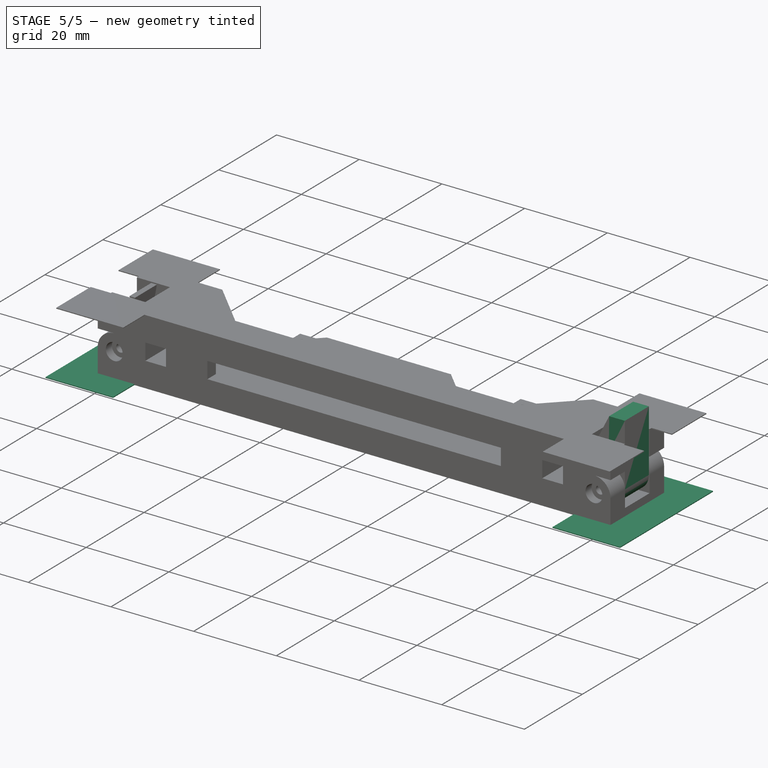
[diagram: stage 5 of 5 — iso view after this stage's code; geometry added in this stage tinted green]
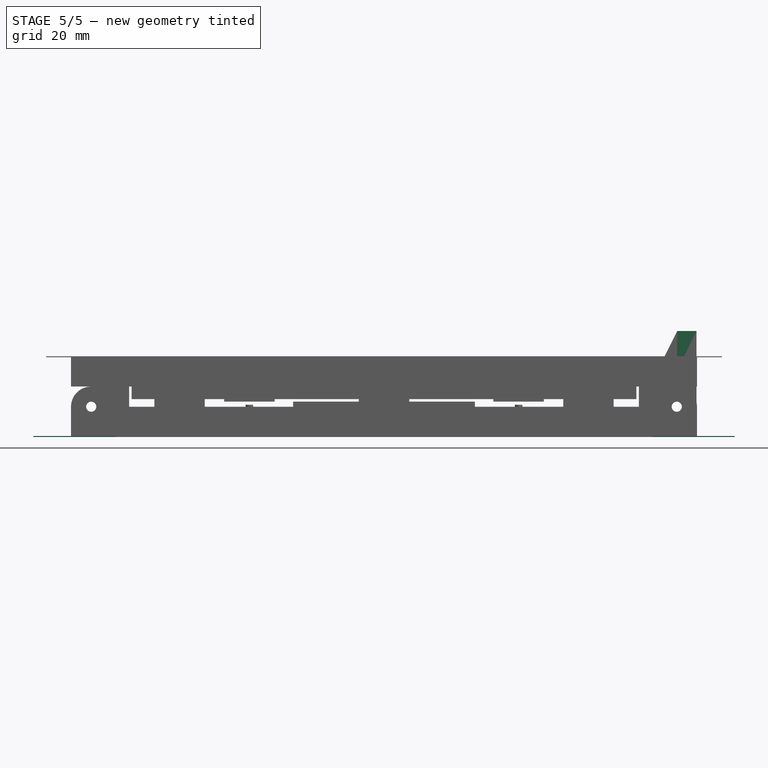
[diagram: stage 5 of 5 — front view after this stage's code; geometry added in this stage tinted green]
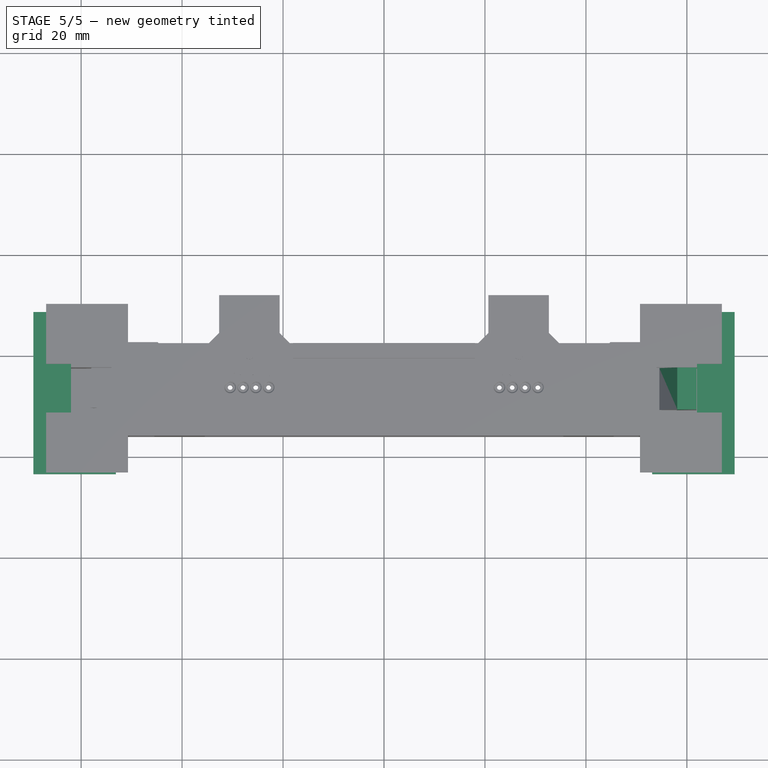
[diagram: stage 5 of 5 — top view after this stage's code; geometry added in this stage tinted green]
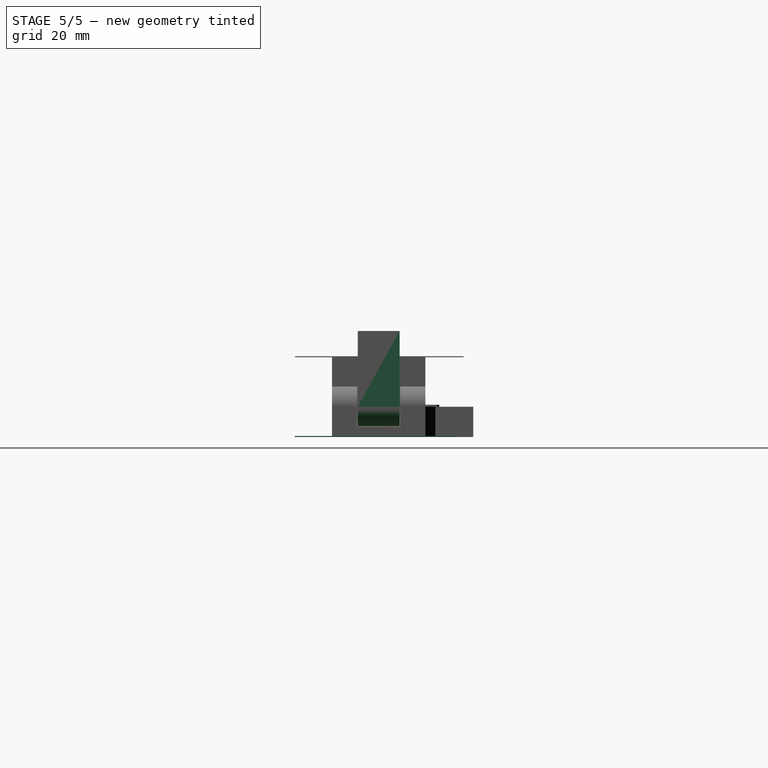
[diagram: stage 5 of 5 — right view after this stage's code; geometry added in this stage tinted green]
FEATURE [Sketcher::SketchObject] Sketch018
  AttachmentOffset = pos=(0,0,6.75) rot=(0,0,1;0rad)
  FullyConstrained = false
  MapMode = 5
  Placement = pos=(0,-6.75,-1.5e-15) rot=(1,0,0;1.5708rad)
  Support = -> [XZ_Plane073]
  sketch-geometry (8):
    g0: Circle CenterX=58 CenterY=0 CenterZ=0 NormalX=0 NormalY=0 NormalZ=1 AngleXU=0 Radius=1
    g1: LineSegment StartX=61.9 StartY=1.6894e-12 StartZ=0 EndX=61.9 EndY=15 EndZ=0
    g2: LineSegment StartX=58 StartY=3.9 StartZ=0 EndX=58 EndY=7 EndZ=0
    g3: LineSegment StartX=58 StartY=7 StartZ=0 EndX=54.1 EndY=7 EndZ=0
    g4: LineSegment StartX=54.1 StartY=7 StartZ=0 EndX=58.1 EndY=15 EndZ=0
    g5: LineSegment StartX=58.1 StartY=15 StartZ=0 EndX=61.9 EndY=15 EndZ=0
    g6: ArcOfCircle CenterX=58 CenterY=0 CenterZ=0 NormalX=0 NormalY=0 NormalZ=1 AngleXU=0 Radius=3.9 StartAngle=1.5708 EndAngle=6.28319
    g7: LineSegment StartX=58 StartY=0 StartZ=0 EndX=58 EndY=3.9 EndZ=0
  constraints (23):
    c: PointOnObject(g0,g-1)
    c: Radius(g0) = 1
    c: PointOnObject(g1,g-1)
    c: Vertical(g1)
    c: DistanceX(g0,g1) = 3.9
    c: Vertical(g2)
    c: Coincident(g3,g2)
    c: Horizontal(g3)
    c: Coincident(g5,g4)
    c: Coincident(g5,g1)
    c: Horizontal(g5)
    c: Coincident(g6,g0)
    c: Coincident(g6,g2)
    c: Coincident(g6,g1)
    c: Coincident(g7,g0)
    c: Coincident(g7,g2)
    c: Vertical(g7)
    c: DistanceX(g3,g3) = 3.9
    c: DistanceY(g2,g2) = 3.1
    c: DistanceY(g1,g1) = 15
    c: DistanceX(g5,g5) = 3.8
    c: Coincident(g4,g3)
    c: DistanceX(g-1,g0) = 58
FEATURE [PartDesign::Pad] Pad005
  AllowMultiFace = false
  Direction = (1,1,1)
  Length = 8.3
  Length2 = 100
  Midplane = true
  Placement = pos=(0,0,0) rot=(1,0,0;1.5708rad)
  Profile = -> Sketch018
  Refine = true
  Type = 0
FEATURE [PartDesign::Chamfer] Chamfer004
  Angle = 45
  Base = -> Pad005 [Edge11]
  BaseFeature = -> Pad005
  ChamferType = 0
  FlipDirection = false
  Placement = pos=(0,0,0) rot=(1,0,0;1.5708rad)
  Size = 1
  Size2 = 1
  SupportTransform = false
FEATURE [PartDesign::Boolean] Boolean001
  BaseFeature = -> Boolean
  Group = -> [Body005,Body006]
  Type = 0
FEATURE [PartDesign::Body] Body012  label="feature_latch_cutout"
  Group = -> [Sketch057,Pad031,Sketch058,Pocket014,Draft003]
  Origin = -> Origin120
  Tip = -> Draft003
FEATURE [PartDesign::Boolean] Boolean003
  BaseFeature = -> Boolean001
  Group = -> [Body012]
  Refine = true
  Type = 1
FEATURE [PartDesign::Body] Body014  label="feature_sidelatch_add_B"
  Group = -> [Sketch060,Pad033]
  Origin = -> Origin122
  Tip = -> Pad033
FEATURE [PartDesign::Boolean] Boolean004
  BaseFeature = -> Boolean003
  Group = -> [Body014,Body013]
  Refine = true
  Type = 0
FEATURE [PartDesign::Body] Body018  label="feature_sidelatch_sub_B"
  Group = -> [Sketch067,Pad039,Sketch008,Pad041,Sketch066,Pad042,Sketch009,Pad040]
  Origin = -> Origin126
  Tip = -> Pad040
FEATURE [PartDesign::Boolean] Boolean005
  BaseFeature = -> Boolean004
  Group = -> [Body018,Body017]
  Refine = true
  Type = 1
FEATURE [PartDesign::Body] Body020  label="feature_pogo_hole"
  Group = -> [Sketch073,Pad046,Sketch074,Pad047,Sketch075,Pad048,Chamfer013]
  Origin = -> Origin128
  Tip = -> Chamfer013
FEATURE [PartDesign::Boolean] Boolean006
  BaseFeature = -> Boolean005
  Group = -> [Body020]
  Refine = true
  Type = 1
FEATURE [PartDesign::Body] Body023  label="feature_positioning_lip_C"
  Group = -> [Sketch082,Pad051]
  Origin = -> Origin131
  Tip = -> Pad051
FEATURE [PartDesign::Boolean] Boolean007
  BaseFeature = -> Boolean006
  Group = -> [Body021,Body023,Body022]
  Refine = true
  Type = 0
FEATURE [Sketcher::SketchObject] Sketch083
  FullyConstrained = false
  MapMode = 5
  Placement = pos=(0,0,-6) rot=(1,0,0;3.14159rad)
  Support = -> [Boolean007]
  sketch-geometry (12):
    g0: LineSegment StartX=-69.4668 StartY=23.3777 StartZ=0 EndX=-53.1279 EndY=23.3777 EndZ=0
    g1: LineSegment StartX=-53.1279 StartY=23.3777 StartZ=0 EndX=-53.1279 EndY=-8.74832 EndZ=0
    g2: LineSegment StartX=-53.1279 StartY=-8.74832 StartZ=0 EndX=-69.4668 EndY=-8.74832 EndZ=0
    g3: LineSegment StartX=-69.4668 StartY=-8.74832 StartZ=0 EndX=-69.4668 EndY=23.3777 EndZ=0
    g4: LineSegment StartX=53.1279 StartY=23.3777 StartZ=0 EndX=69.4668 EndY=23.3777 EndZ=0
    g5: LineSegment StartX=69.4668 StartY=23.3777 StartZ=0 EndX=69.4668 EndY=-8.74832 EndZ=0
    g6: LineSegment StartX=69.4668 StartY=-8.74832 StartZ=0 EndX=53.1279 EndY=-8.74832 EndZ=0
    g7: LineSegment StartX=53.1279 StartY=-8.74832 StartZ=0 EndX=53.1279 EndY=23.3777 EndZ=0
    g8: LineSegment StartX=-53.1279 StartY=23.3777 StartZ=0 EndX=0 EndY=0 EndZ=0
    g9: LineSegment StartX=0 StartY=0 StartZ=0 EndX=-53.1279 EndY=-8.74832 EndZ=0
    g10: LineSegment StartX=53.1279 StartY=-8.74832 StartZ=0 EndX=0 EndY=0 EndZ=0
    g11: LineSegment StartX=0 StartY=0 StartZ=0 EndX=53.1279 EndY=23.3777 EndZ=0
  constraints (28):
    c: Coincident(g0,g1)
    c: Coincident(g1,g2)
    c: Coincident(g2,g3)
    c: Coincident(g3,g0)
    c: Horizontal(g0)
    c: Horizontal(g2)
    c: Vertical(g1)
    c: Vertical(g3)
    c: Coincident(g4,g5)
    c: Coincident(g5,g6)
    c: Coincident(g6,g7)
    c: Coincident(g7,g4)
    c: Horizontal(g4)
    c: Horizontal(g6)
    c: Vertical(g5)
    c: Vertical(g7)
    c: Equal(g4,g0)
    c: Equal(g1,g7)
    c: Coincident(g0,g8)
    c: Coincident(g8,g-1)
    c: Coincident(g8,g9)
    c: Coincident(g9,g1)
    c: Coincident(g6,g10)
    c: Coincident(g10,g8)
    c: Coincident(g10,g11)
    c: Coincident(g11,g4)
    c: Equal(g9,g10)
    c: Equal(g8,g11)
FEATURE [PartDesign::Pad] Pad052
  AllowMultiFace = false
  BaseFeature = -> Boolean007
  Direction = (1,1,1)
  Length = 0.2
  Length2 = 100
  Profile = -> Sketch083
  Refine = true
  Reversed = true
  Type = 0
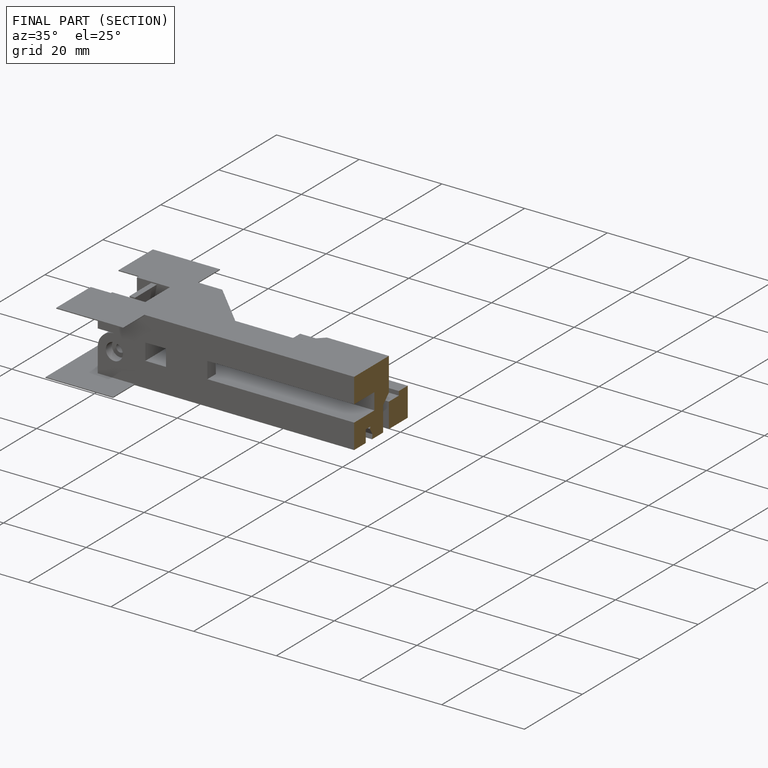
[diagram: finished part — half-section view (interior)]
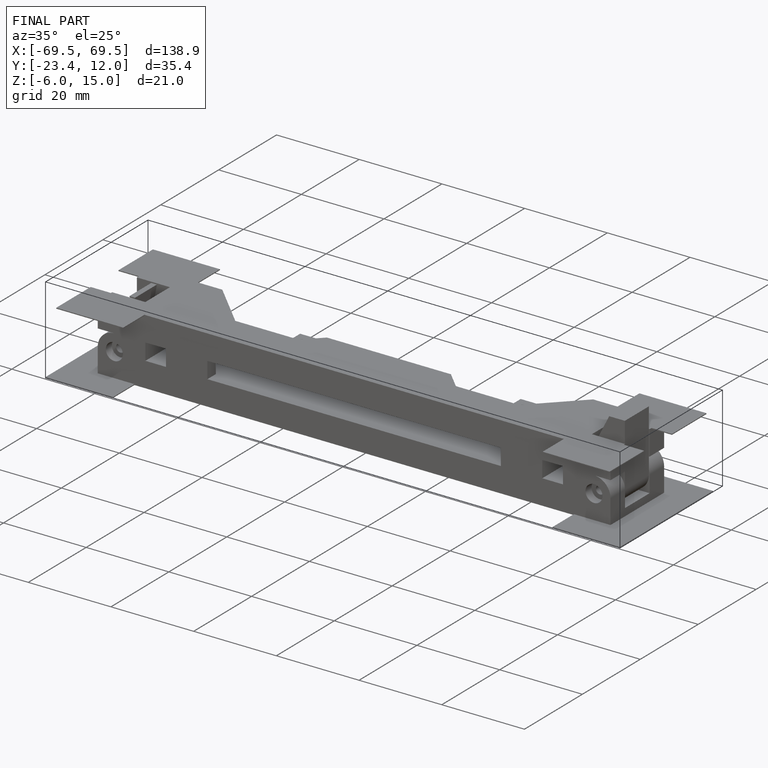
[diagram: finished part — iso view with bounding-box wireframe]
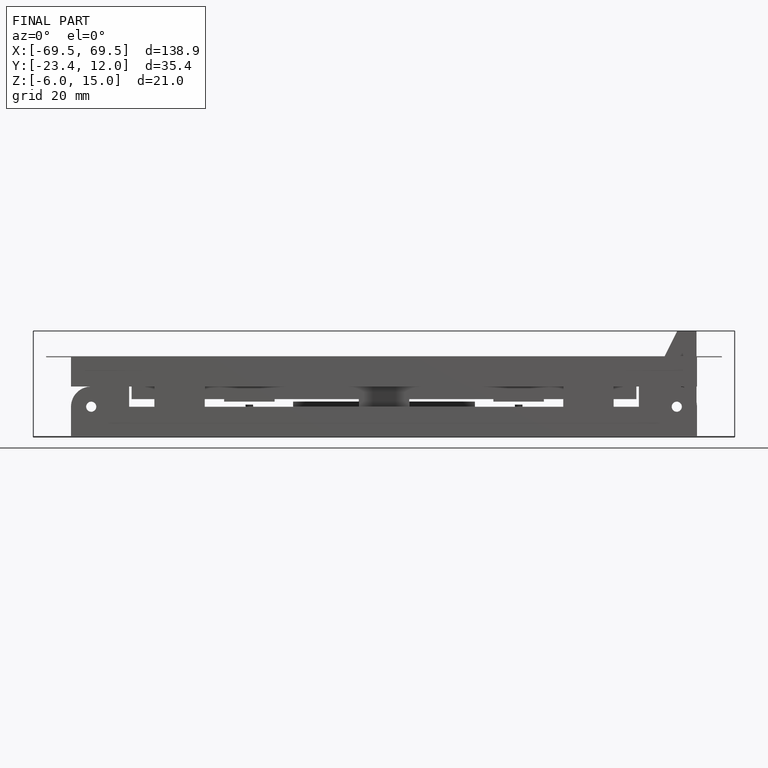
[diagram: finished part — front view with bounding-box wireframe]
